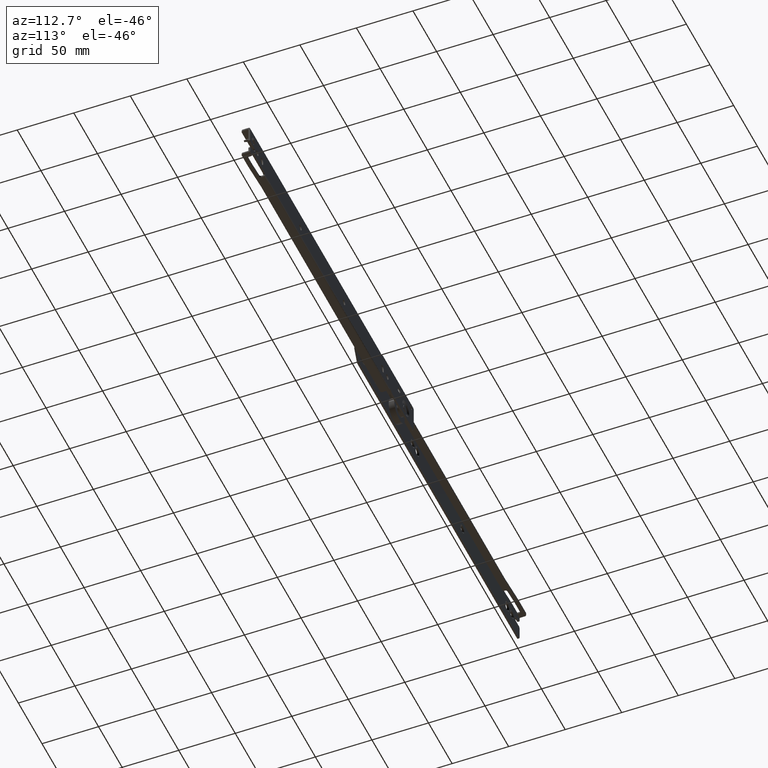
[diagram: clean part render]
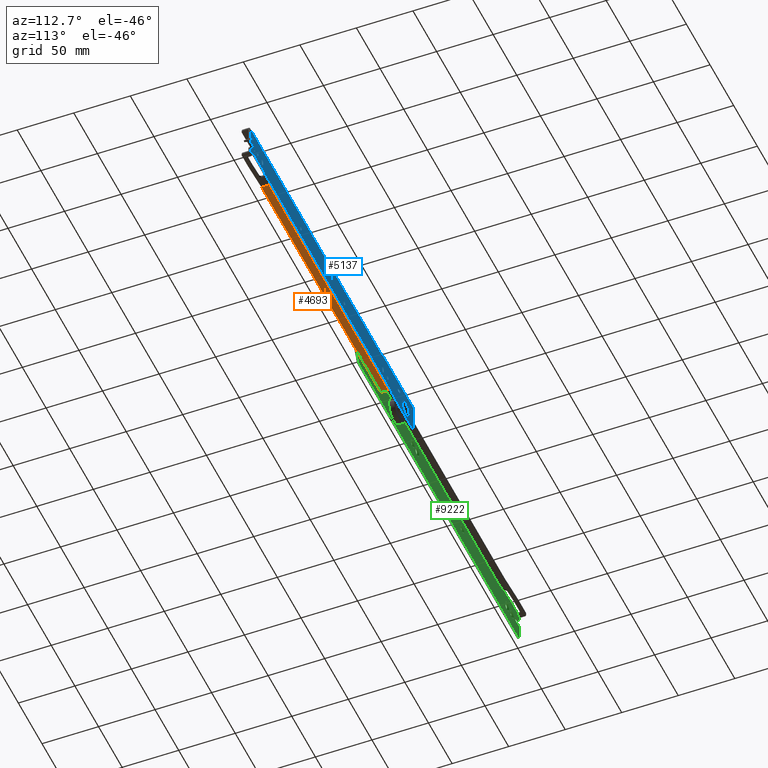
[diagram: same view with three faces highlighted in distinct colors, each labeled with its STEP entity id]
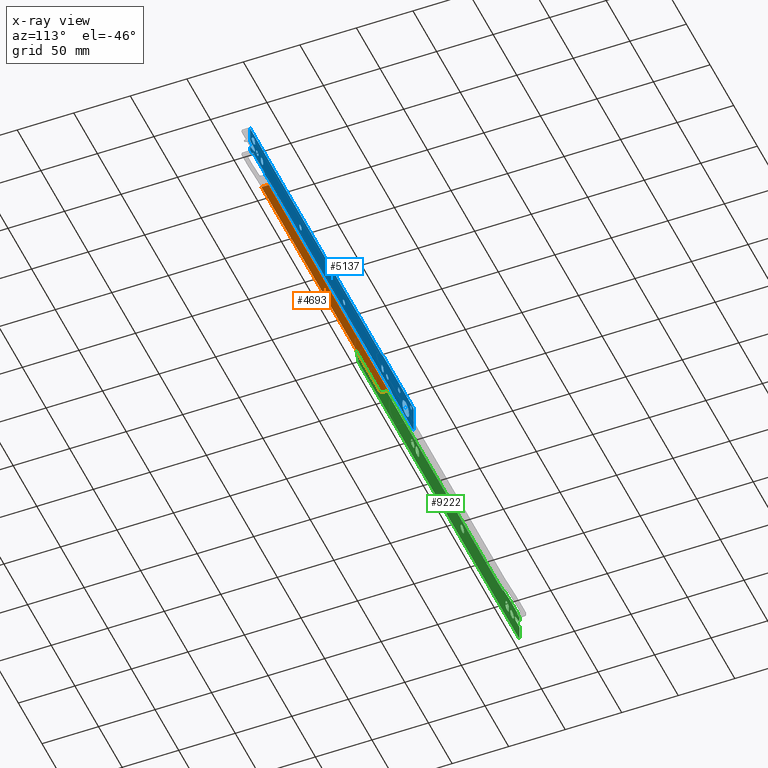
[diagram: x-ray of the same camera — body ghosted, the three highlighted faces saturated]
A machine part, auxiliary view with three faces highlighted in distinct colors.
The next image is the same camera in x-ray (body ghosted, the three faces saturated) — at least one of them is partly hidden behind the body in this view.
Their STEP definitions:

[orange] entity #4693 — the highlighted face is a freeform B-spline surface patch.
#2593=CARTESIAN_POINT('',(207.0,4.499999999999775,1.500000000000000));
#2594=VERTEX_POINT('',#2593);
#2595=CARTESIAN_POINT('',(205.500000000000000,5.999999999999780,1.500000000000000));
#2596=VERTEX_POINT('',#2595);
#2597=CARTESIAN_POINT('',(207.0,4.499999999999781,1.500000000000000));
#2598=CARTESIAN_POINT('',(205.499999999999970,4.499999999999781,1.500000000000000));
#2599=CARTESIAN_POINT('',(205.500000000000000,5.999999999999780,1.500000000000000));
#2607=(BOUNDED_CURVE()B_SPLINE_CURVE(2,(#2597,#2598,#2599),.UNSPECIFIED.,.F.,.U.)CURVE()GEOMETRIC_REPRESENTATION_ITEM()QUASI_UNIFORM_CURVE()RATIONAL_B_SPLINE_CURVE((1.0,0.707106781186548,1.0))REPRESENTATION_ITEM(''));
#2608=EDGE_CURVE('',#2594,#2596,#2607,.T.);
#2956=CARTESIAN_POINT('',(205.500000000000000,11.0,1.500000000000000));
#2957=VERTEX_POINT('',#2956);
#2958=CARTESIAN_POINT('',(205.500000000000000,11.0,1.500000000000000));
#2959=CARTESIAN_POINT('',(205.500000000000000,5.999999999999780,1.500000000000000));
#2960=QUASI_UNIFORM_CURVE('',1,(#2958,#2959),.UNSPECIFIED.,.F.,.U.);
#2961=EDGE_CURVE('',#2957,#2596,#2960,.T.);
#3548=CARTESIAN_POINT('',(458.0,10.999999999999680,1.500000000000000));
#3549=VERTEX_POINT('',#3548);
#3563=CARTESIAN_POINT('',(205.500000000000000,11.0,1.500000000000000));
#3564=CARTESIAN_POINT('',(458.0,10.999999999999680,1.500000000000000));
#3565=QUASI_UNIFORM_CURVE('',1,(#3563,#3564),.UNSPECIFIED.,.F.,.U.);
#3566=EDGE_CURVE('',#2957,#3549,#3565,.T.);
#4570=CARTESIAN_POINT('',(458.0,4.499999999999725,1.500000000000000));
#4571=VERTEX_POINT('',#4570);
#4572=CARTESIAN_POINT('',(458.0,4.499999999999725,1.500000000000000));
#4573=CARTESIAN_POINT('',(207.0,4.499999999999775,1.500000000000000));
#4574=QUASI_UNIFORM_CURVE('',1,(#4572,#4573),.UNSPECIFIED.,.F.,.U.);
#4575=EDGE_CURVE('',#4571,#2594,#4574,.T.);
#4677=CARTESIAN_POINT('',(470.612374510606120,4.175325012597972,1.500000000000000));
#4678=CARTESIAN_POINT('',(192.887618716816210,4.175325012597972,1.500000000000000));
#4679=CARTESIAN_POINT('',(470.612374510606120,11.324675161745340,1.500000000000000));
#4680=CARTESIAN_POINT('',(192.887618716816210,11.324675161745340,1.500000000000000));
#4681=B_SPLINE_SURFACE_WITH_KNOTS('',1,1,((#4677,#4679),(#4678,#4680)),.UNSPECIFIED.,.F.,.F.,.U.,(2,2),(2,2),(0.0,277.724755793789830),(0.0,7.149350149147366),.UNSPECIFIED.);
#4682=ORIENTED_EDGE('',*,*,#4575,.T.);
#4683=ORIENTED_EDGE('',*,*,#2608,.T.);
#4684=ORIENTED_EDGE('',*,*,#2961,.F.);
#4685=ORIENTED_EDGE('',*,*,#3566,.T.);
#4686=CARTESIAN_POINT('',(458.0,4.499999999999725,1.500000000000000));
#4687=CARTESIAN_POINT('',(458.0,10.999999999999680,1.500000000000000));
#4688=QUASI_UNIFORM_CURVE('',1,(#4686,#4687),.UNSPECIFIED.,.F.,.U.);
#4689=EDGE_CURVE('',#4571,#3549,#4688,.T.);
#4690=ORIENTED_EDGE('',*,*,#4689,.F.);
#4691=EDGE_LOOP('',(#4682,#4683,#4684,#4685,#4690));
#4692=FACE_OUTER_BOUND('',#4691,.T.);
#4693=ADVANCED_FACE('',(#4692),#4681,.T.);

[blue] entity #5137 — the highlighted face is a freeform B-spline surface patch.
#721=CARTESIAN_POINT('',(392.118561086909210,12.499999997148841,11.202092773617579));
#722=VERTEX_POINT('',#721);
#723=CARTESIAN_POINT('',(394.500000000000000,12.499999999999300,9.100000000000000));
#724=VERTEX_POINT('',#723);
#725=CARTESIAN_POINT('',(392.118561086909150,12.499999997148839,11.202092773617577));
#726=CARTESIAN_POINT('',(392.381523397422650,12.499999999999302,9.100000000000000));
#727=CARTESIAN_POINT('',(394.500000000000000,12.499999999999300,9.100000000000000));
#735=(BOUNDED_CURVE()B_SPLINE_CURVE(2,(#725,#726,#727),.UNSPECIFIED.,.F.,.U.)B_SPLINE_CURVE_WITH_KNOTS((3,3),(0.271473931955261,0.500000000000000),.UNSPECIFIED.)CURVE()GEOMETRIC_REPRESENTATION_ITEM()RATIONAL_B_SPLINE_CURVE((0.954005424482843,0.732265057390377,1.0))REPRESENTATION_ITEM(''));
#736=EDGE_CURVE('',#722,#724,#735,.T.);
#777=CARTESIAN_POINT('',(396.899908616968390,12.499999998075010,11.520943698667260));
#778=VERTEX_POINT('',#777);
#784=CARTESIAN_POINT('',(394.500000000000000,12.499999999999300,9.100000000000000));
#785=CARTESIAN_POINT('',(396.900000000000030,12.499999999999300,9.100000000000000));
#786=CARTESIAN_POINT('',(396.899999999999980,12.499999999999300,11.500000000000000));
#787=CARTESIAN_POINT('',(396.900000000000030,12.499999999999302,11.510472055426504));
#788=CARTESIAN_POINT('',(396.899908616968390,12.499999998075008,11.520943698667255));
#796=(BOUNDED_CURVE()B_SPLINE_CURVE(2,(#784,#785,#786,#787,#788),.UNSPECIFIED.,.F.,.U.)B_SPLINE_CURVE_WITH_KNOTS((3,2,3),(0.500000000000000,0.750000000000000,0.751539896310218),.UNSPECIFIED.)CURVE()GEOMETRIC_REPRESENTATION_ITEM()RATIONAL_B_SPLINE_CURVE((1.0,0.707106781186547,1.0,0.998195899252245,0.996414023529169))REPRESENTATION_ITEM(''));
#797=EDGE_CURVE('',#724,#778,#796,.T.);
#824=CARTESIAN_POINT('',(394.500000000000000,12.499999999999300,13.900000000000000));
#825=VERTEX_POINT('',#824);
#826=CARTESIAN_POINT('',(394.500000000000000,12.499999999999300,13.900000000000000));
#827=CARTESIAN_POINT('',(392.099999999999910,12.499999999999300,13.899999999999997));
#828=CARTESIAN_POINT('',(392.100000000000020,12.499999999999300,11.500000000000000));
#829=CARTESIAN_POINT('',(392.100000000000020,12.499999999999300,11.350468152600543));
#830=CARTESIAN_POINT('',(392.118561086909150,12.499999997148839,11.202092773617577));
#838=(BOUNDED_CURVE()B_SPLINE_CURVE(2,(#826,#827,#828,#829,#830),.UNSPECIFIED.,.F.,.U.)B_SPLINE_CURVE_WITH_KNOTS((3,2,3),(0.0,0.250000000000000,0.271473931955261),.UNSPECIFIED.)CURVE()GEOMETRIC_REPRESENTATION_ITEM()RATIONAL_B_SPLINE_CURVE((1.0,0.707106781186547,1.0,0.974841723796171,0.954005424482843))REPRESENTATION_ITEM(''));
#839=EDGE_CURVE('',#825,#722,#838,.T.);
#841=CARTESIAN_POINT('',(396.899908616968330,12.499999998075010,11.520943698667256));
#842=CARTESIAN_POINT('',(396.879146878747690,12.499999999999300,13.899999999999997));
#843=CARTESIAN_POINT('',(394.500000000000000,12.499999999999300,13.900000000000000));
#851=(BOUNDED_CURVE()B_SPLINE_CURVE(2,(#841,#842,#843),.UNSPECIFIED.,.F.,.U.)B_SPLINE_CURVE_WITH_KNOTS((3,3),(0.751539896310217,1.0),.UNSPECIFIED.)CURVE()GEOMETRIC_REPRESENTATION_ITEM()RATIONAL_B_SPLINE_CURVE((0.996414023529170,0.708910881934301,1.0))REPRESENTATION_ITEM(''));
#852=EDGE_CURVE('',#778,#825,#851,.T.);
#907=CARTESIAN_POINT('',(300.118561086909210,12.499999997148800,11.202092773617560));
#908=VERTEX_POINT('',#907);
#909=CARTESIAN_POINT('',(302.500000000000000,12.499999999999300,9.100000000000000));
#910=VERTEX_POINT('',#909);
#911=CARTESIAN_POINT('',(300.118561086909100,12.499999997148793,11.202092773617569));
#912=CARTESIAN_POINT('',(300.381523397422880,12.499999999999302,9.100000000000000));
#913=CARTESIAN_POINT('',(302.500000000000000,12.499999999999300,9.100000000000000));
#921=(BOUNDED_CURVE()B_SPLINE_CURVE(2,(#911,#912,#913),.UNSPECIFIED.,.F.,.U.)B_SPLINE_CURVE_WITH_KNOTS((3,3),(0.271473931955262,0.500000000000000),.UNSPECIFIED.)CURVE()GEOMETRIC_REPRESENTATION_ITEM()RATIONAL_B_SPLINE_CURVE((0.954005424482840,0.732265057390379,1.0))REPRESENTATION_ITEM(''));
#922=EDGE_CURVE('',#908,#910,#921,.T.);
#963=CARTESIAN_POINT('',(304.899908616968280,12.499999998075040,11.520943698667260));
#964=VERTEX_POINT('',#963);
#970=CARTESIAN_POINT('',(302.500000000000000,12.499999999999300,9.100000000000000));
#971=CARTESIAN_POINT('',(304.899999999999980,12.499999999999300,9.100000000000000));
#972=CARTESIAN_POINT('',(304.899999999999980,12.499999999999300,11.500000000000000));
#973=CARTESIAN_POINT('',(304.899999999999980,12.499999999999302,11.510472055426504));
#974=CARTESIAN_POINT('',(304.899908616968280,12.499999998075040,11.520943698667264));
#982=(BOUNDED_CURVE()B_SPLINE_CURVE(2,(#970,#971,#972,#973,#974),.UNSPECIFIED.,.F.,.U.)B_SPLINE_CURVE_WITH_KNOTS((3,2,3),(0.500000000000000,0.750000000000000,0.751539896310218),.UNSPECIFIED.)CURVE()GEOMETRIC_REPRESENTATION_ITEM()RATIONAL_B_SPLINE_CURVE((1.0,0.707106781186547,1.0,0.998195899252245,0.996414023529169))REPRESENTATION_ITEM(''));
#983=EDGE_CURVE('',#910,#964,#982,.T.);
#1010=CARTESIAN_POINT('',(302.500000000000000,12.499999999999300,13.900000000000000));
#1011=VERTEX_POINT('',#1010);
#1012=CARTESIAN_POINT('',(302.500000000000000,12.499999999999300,13.900000000000000));
#1013=CARTESIAN_POINT('',(300.100000000000020,12.499999999999300,13.899999999999997));
#1014=CARTESIAN_POINT('',(300.100000000000020,12.499999999999300,11.500000000000000));
#1015=CARTESIAN_POINT('',(300.099999999999910,12.499999999999304,11.350468152600534));
#1016=CARTESIAN_POINT('',(300.118561086909100,12.499999997148795,11.202092773617560));
#1024=(BOUNDED_CURVE()B_SPLINE_CURVE(2,(#1012,#1013,#1014,#1015,#1016),.UNSPECIFIED.,.F.,.U.)B_SPLINE_CURVE_WITH_KNOTS((3,2,3),(0.0,0.250000000000000,0.271473931955262),.UNSPECIFIED.)CURVE()GEOMETRIC_REPRESENTATION_ITEM()RATIONAL_B_SPLINE_CURVE((1.0,0.707106781186547,1.0,0.974841723796169,0.954005424482840))REPRESENTATION_ITEM(''));
#1025=EDGE_CURVE('',#1011,#908,#1024,.T.);
#1027=CARTESIAN_POINT('',(304.899908616968280,12.499999998075044,11.520943698667260));
#1028=CARTESIAN_POINT('',(304.879146878747630,12.499999999999300,13.899999999999995));
#1029=CARTESIAN_POINT('',(302.500000000000000,12.499999999999300,13.900000000000000));
#1037=(BOUNDED_CURVE()B_SPLINE_CURVE(2,(#1027,#1028,#1029),.UNSPECIFIED.,.F.,.U.)B_SPLINE_CURVE_WITH_KNOTS((3,3),(0.751539896310217,1.0),.UNSPECIFIED.)CURVE()GEOMETRIC_REPRESENTATION_ITEM()RATIONAL_B_SPLINE_CURVE((0.996414023529170,0.708910881934301,1.0))REPRESENTATION_ITEM(''));
#1038=EDGE_CURVE('',#964,#1011,#1037,.T.);
#1495=CARTESIAN_POINT('',(208.618561086909210,12.499999997149301,11.202092773617570));
#1496=VERTEX_POINT('',#1495);
#1497=CARTESIAN_POINT('',(211.0,12.499999999999719,9.100000000000025));
#1498=VERTEX_POINT('',#1497);
#1499=CARTESIAN_POINT('',(208.618561086909180,12.499999997149299,11.202092773617563));
#1500=CARTESIAN_POINT('',(208.881523397422820,12.499999999999721,9.100000000000025));
#1501=CARTESIAN_POINT('',(211.0,12.499999999999719,9.100000000000025));
#1509=(BOUNDED_CURVE()B_SPLINE_CURVE(2,(#1499,#1500,#1501),.UNSPECIFIED.,.F.,.U.)B_SPLINE_CURVE_WITH_KNOTS((3,3),(0.271473931955261,0.500000000000000),.UNSPECIFIED.)CURVE()GEOMETRIC_REPRESENTATION_ITEM()RATIONAL_B_SPLINE_CURVE((0.954005424482841,0.732265057390378,1.0))REPRESENTATION_ITEM(''));
#1510=EDGE_CURVE('',#1496,#1498,#1509,.T.);
#1551=CARTESIAN_POINT('',(213.399908616968390,12.499999998075500,11.520943698667260));
#1552=VERTEX_POINT('',#1551);
#1558=CARTESIAN_POINT('',(211.0,12.499999999999719,9.100000000000025));
#1559=CARTESIAN_POINT('',(213.400000000000090,12.499999999999718,9.100000000000025));
#1560=CARTESIAN_POINT('',(213.400000000000010,12.499999999999719,11.500000000000000));
#1561=CARTESIAN_POINT('',(213.400000000000030,12.499999999999721,11.510472055426504));
#1562=CARTESIAN_POINT('',(213.399908616968420,12.499999998075500,11.520943698667264));
#1570=(BOUNDED_CURVE()B_SPLINE_CURVE(2,(#1558,#1559,#1560,#1561,#1562),.UNSPECIFIED.,.F.,.U.)B_SPLINE_CURVE_WITH_KNOTS((3,2,3),(0.500000000000000,0.750000000000000,0.751539896310218),.UNSPECIFIED.)CURVE()GEOMETRIC_REPRESENTATION_ITEM()RATIONAL_B_SPLINE_CURVE((1.0,0.707106781186548,1.0,0.998195899252245,0.996414023529169))REPRESENTATION_ITEM(''));
#1571=EDGE_CURVE('',#1498,#1552,#1570,.T.);
#1598=CARTESIAN_POINT('',(211.0,12.499999999999719,13.899999999999981));
#1599=VERTEX_POINT('',#1598);
#1600=CARTESIAN_POINT('',(211.0,12.499999999999719,13.899999999999981));
#1601=CARTESIAN_POINT('',(208.599999999999970,12.499999999999718,13.899999999999974));
#1602=CARTESIAN_POINT('',(208.599999999999990,12.499999999999719,11.500000000000000));
#1603=CARTESIAN_POINT('',(208.600000000000050,12.499999999999725,11.350468152600536));
#1604=CARTESIAN_POINT('',(208.618561086909120,12.499999997149303,11.202092773617567));
#1612=(BOUNDED_CURVE()B_SPLINE_CURVE(2,(#1600,#1601,#1602,#1603,#1604),.UNSPECIFIED.,.F.,.U.)B_SPLINE_CURVE_WITH_KNOTS((3,2,3),(0.0,0.250000000000000,0.271473931955262),.UNSPECIFIED.)CURVE()GEOMETRIC_REPRESENTATION_ITEM()RATIONAL_B_SPLINE_CURVE((1.0,0.707106781186548,1.0,0.974841723796170,0.954005424482841))REPRESENTATION_ITEM(''));
#1613=EDGE_CURVE('',#1599,#1496,#1612,.T.);
#1615=CARTESIAN_POINT('',(213.399908616968450,12.499999998075506,11.520943698667260));
#1616=CARTESIAN_POINT('',(213.379146878747690,12.499999999999719,13.899999999999972));
#1617=CARTESIAN_POINT('',(211.0,12.499999999999719,13.899999999999981));
#1625=(BOUNDED_CURVE()B_SPLINE_CURVE(2,(#1615,#1616,#1617),.UNSPECIFIED.,.F.,.U.)B_SPLINE_CURVE_WITH_KNOTS((3,3),(0.751539896310217,1.0),.UNSPECIFIED.)CURVE()GEOMETRIC_REPRESENTATION_ITEM()RATIONAL_B_SPLINE_CURVE((0.996414023529170,0.708910881934302,1.0))REPRESENTATION_ITEM(''));
#1626=EDGE_CURVE('',#1552,#1599,#1625,.T.);
#1681=CARTESIAN_POINT('',(183.618561086909100,12.499999997149290,19.202092773617562));
#1682=VERTEX_POINT('',#1681);
#1683=CARTESIAN_POINT('',(186.0,12.499999999999719,17.100000000000001));
#1684=VERTEX_POINT('',#1683);
#1685=CARTESIAN_POINT('',(183.618561086909100,12.499999997149295,19.202092773617562));
#1686=CARTESIAN_POINT('',(183.881523397422740,12.499999999999718,17.100000000000005));
#1687=CARTESIAN_POINT('',(186.0,12.499999999999719,17.100000000000001));
#1695=(BOUNDED_CURVE()B_SPLINE_CURVE(2,(#1685,#1686,#1687),.UNSPECIFIED.,.F.,.U.)B_SPLINE_CURVE_WITH_KNOTS((3,3),(0.271473931955262,0.500000000000000),.UNSPECIFIED.)CURVE()GEOMETRIC_REPRESENTATION_ITEM()RATIONAL_B_SPLINE_CURVE((0.954005424482841,0.732265057390378,1.0))REPRESENTATION_ITEM(''));
#1696=EDGE_CURVE('',#1682,#1684,#1695,.T.);
#1737=CARTESIAN_POINT('',(188.399908616968500,12.499999998075500,19.520943698667260));
#1738=VERTEX_POINT('',#1737);
#1744=CARTESIAN_POINT('',(186.0,12.499999999999719,17.100000000000001));
#1745=CARTESIAN_POINT('',(188.399999999999950,12.499999999999719,17.099999999999998));
#1746=CARTESIAN_POINT('',(188.400000000000010,12.499999999999719,19.500000000000000));
#1747=CARTESIAN_POINT('',(188.400000000000090,12.499999999999721,19.510472055426511));
#1748=CARTESIAN_POINT('',(188.399908616968420,12.499999998075500,19.520943698667264));
#1756=(BOUNDED_CURVE()B_SPLINE_CURVE(2,(#1744,#1745,#1746,#1747,#1748),.UNSPECIFIED.,.F.,.U.)B_SPLINE_CURVE_WITH_KNOTS((3,2,3),(0.500000000000000,0.750000000000000,0.751539896310218),.UNSPECIFIED.)CURVE()GEOMETRIC_REPRESENTATION_ITEM()RATIONAL_B_SPLINE_CURVE((1.0,0.707106781186547,1.0,0.998195899252245,0.996414023529169))REPRESENTATION_ITEM(''));
#1757=EDGE_CURVE('',#1684,#1738,#1756,.T.);
#1784=CARTESIAN_POINT('',(186.0,12.499999999999719,21.899999999999999));
#1785=VERTEX_POINT('',#1784);
#1786=CARTESIAN_POINT('',(186.0,12.499999999999719,21.899999999999999));
#1787=CARTESIAN_POINT('',(183.599999999999990,12.499999999999719,21.900000000000002));
#1788=CARTESIAN_POINT('',(183.599999999999990,12.499999999999719,19.500000000000000));
#1789=CARTESIAN_POINT('',(183.599999999999990,12.499999999999726,19.350468152600531));
#1790=CARTESIAN_POINT('',(183.618561086909100,12.499999997149295,19.202092773617562));
#1798=(BOUNDED_CURVE()B_SPLINE_CURVE(2,(#1786,#1787,#1788,#1789,#1790),.UNSPECIFIED.,.F.,.U.)B_SPLINE_CURVE_WITH_KNOTS((3,2,3),(0.0,0.250000000000000,0.271473931955262),.UNSPECIFIED.)CURVE()GEOMETRIC_REPRESENTATION_ITEM()RATIONAL_B_SPLINE_CURVE((1.0,0.707106781186547,1.0,0.974841723796169,0.954005424482841))REPRESENTATION_ITEM(''));
#1799=EDGE_CURVE('',#1785,#1682,#1798,.T.);
#1801=CARTESIAN_POINT('',(188.399908616968470,12.499999998075499,19.520943698667260));
#1802=CARTESIAN_POINT('',(188.379146878747660,12.499999999999719,21.899999999999995));
#1803=CARTESIAN_POINT('',(186.0,12.499999999999719,21.899999999999999));
#1811=(BOUNDED_CURVE()B_SPLINE_CURVE(2,(#1801,#1802,#1803),.UNSPECIFIED.,.F.,.U.)B_SPLINE_CURVE_WITH_KNOTS((3,3),(0.751539896310218,1.0),.UNSPECIFIED.)CURVE()GEOMETRIC_REPRESENTATION_ITEM()RATIONAL_B_SPLINE_CURVE((0.996414023529169,0.708910881934302,1.0))REPRESENTATION_ITEM(''));
#1812=EDGE_CURVE('',#1738,#1785,#1811,.T.);
#1871=CARTESIAN_POINT('',(158.812233328866110,12.499999999999719,23.656559910670381));
#1872=VERTEX_POINT('',#1871);
#1873=CARTESIAN_POINT('',(160.550000000000010,12.499999999999719,21.699999999999999));
#1874=VERTEX_POINT('',#1873);
#1875=CARTESIAN_POINT('',(158.812233328866090,12.499999999999719,23.656559910670381));
#1876=CARTESIAN_POINT('',(158.800000000000010,12.499999999999718,23.553642209412121));
#1877=CARTESIAN_POINT('',(158.800000000000010,12.499999999999719,23.449999999999999));
#1878=CARTESIAN_POINT('',(158.799999999999950,12.499999999999719,21.699999999999999));
#1879=CARTESIAN_POINT('',(160.550000000000010,12.499999999999719,21.699999999999999));
#1887=(BOUNDED_CURVE()B_SPLINE_CURVE(2,(#1875,#1876,#1877,#1878,#1879),.UNSPECIFIED.,.F.,.U.)B_SPLINE_CURVE_WITH_KNOTS((3,2,3),(0.229562473511549,0.250000000000000,0.500000000000000),.UNSPECIFIED.)CURVE()GEOMETRIC_REPRESENTATION_ITEM()RATIONAL_B_SPLINE_CURVE((0.956026754179860,0.976055948328850,1.0,0.707106781186547,1.0))REPRESENTATION_ITEM(''));
#1888=EDGE_CURVE('',#1872,#1874,#1887,.T.);
#1929=CARTESIAN_POINT('',(162.296735897235610,12.499999999999719,23.343165055771081));
#1930=VERTEX_POINT('',#1929);
#1936=CARTESIAN_POINT('',(160.550000000000010,12.499999999999719,21.699999999999999));
#1937=CARTESIAN_POINT('',(162.196235617003880,12.499999999999719,21.699999999999996));
#1938=CARTESIAN_POINT('',(162.296735897235660,12.499999999999719,23.343165055771081));
#1946=(BOUNDED_CURVE()B_SPLINE_CURVE(2,(#1936,#1937,#1938),.UNSPECIFIED.,.F.,.U.)B_SPLINE_CURVE_WITH_KNOTS((3,3),(0.500000000000000,0.739332962233489),.UNSPECIFIED.)CURVE()GEOMETRIC_REPRESENTATION_ITEM()RATIONAL_B_SPLINE_CURVE((1.0,0.719603993293099,0.976072041655030))REPRESENTATION_ITEM(''));
#1947=EDGE_CURVE('',#1874,#1930,#1946,.T.);
#1970=CARTESIAN_POINT('',(160.550000000000010,12.499999999999719,25.199999999999999));
#1971=VERTEX_POINT('',#1970);
#1972=CARTESIAN_POINT('',(160.550000000000010,12.499999999999719,25.199999999999999));
#1973=CARTESIAN_POINT('',(158.995694579622950,12.499999999999719,25.200000000000003));
#1974=CARTESIAN_POINT('',(158.812233328866060,12.499999999999718,23.656559910670389));
#1982=(BOUNDED_CURVE()B_SPLINE_CURVE(2,(#1972,#1973,#1974),.UNSPECIFIED.,.F.,.U.)B_SPLINE_CURVE_WITH_KNOTS((3,3),(0.0,0.229562473511550),.UNSPECIFIED.)CURVE()GEOMETRIC_REPRESENTATION_ITEM()RATIONAL_B_SPLINE_CURVE((1.0,0.731050832857697,0.956026754179860))REPRESENTATION_ITEM(''));
#1983=EDGE_CURVE('',#1971,#1872,#1982,.T.);
#1985=CARTESIAN_POINT('',(162.296735897235580,12.499999999999716,23.343165055771081));
#1986=CARTESIAN_POINT('',(162.299999999999980,12.499999999999723,23.396532664184427));
#1987=CARTESIAN_POINT('',(162.300000000000010,12.499999999999719,23.449999999999999));
#1988=CARTESIAN_POINT('',(162.300000000000070,12.499999999999719,25.200000000000006));
#1989=CARTESIAN_POINT('',(160.550000000000010,12.499999999999719,25.199999999999999));
#1997=(BOUNDED_CURVE()B_SPLINE_CURVE(2,(#1985,#1986,#1987,#1988,#1989),.UNSPECIFIED.,.F.,.U.)B_SPLINE_CURVE_WITH_KNOTS((3,2,3),(0.739332962233489,0.750000000000000,1.0),.UNSPECIFIED.)CURVE()GEOMETRIC_REPRESENTATION_ITEM()RATIONAL_B_SPLINE_CURVE((0.976072041655029,0.987502787893447,1.0,0.707106781186547,1.0))REPRESENTATION_ITEM(''));
#1998=EDGE_CURVE('',#1930,#1971,#1997,.T.);
#2053=CARTESIAN_POINT('',(483.618561086909210,12.499999997149310,11.202092773617570));
#2054=VERTEX_POINT('',#2053);
#2055=CARTESIAN_POINT('',(486.0,12.499999999999719,9.100000000000025));
#2056=VERTEX_POINT('',#2055);
#2057=CARTESIAN_POINT('',(483.618561086909100,12.499999997149310,11.202092773617577));
#2058=CARTESIAN_POINT('',(483.881523397422650,12.499999999999716,9.100000000000023));
#2059=CARTESIAN_POINT('',(486.0,12.499999999999719,9.100000000000025));
#2067=(BOUNDED_CURVE()B_SPLINE_CURVE(2,(#2057,#2058,#2059),.UNSPECIFIED.,.F.,.U.)B_SPLINE_CURVE_WITH_KNOTS((3,3),(0.271473931955261,0.500000000000000),.UNSPECIFIED.)CURVE()GEOMETRIC_REPRESENTATION_ITEM()RATIONAL_B_SPLINE_CURVE((0.954005424482843,0.732265057390377,1.0))REPRESENTATION_ITEM(''));
#2068=EDGE_CURVE('',#2054,#2056,#2067,.T.);
#2109=CARTESIAN_POINT('',(488.399908616968280,12.499999998075500,11.520943698667260));
#2110=VERTEX_POINT('',#2109);
#2116=CARTESIAN_POINT('',(486.0,12.499999999999719,9.100000000000025));
#2117=CARTESIAN_POINT('',(488.399999999999810,12.499999999999718,9.100000000000025));
#2118=CARTESIAN_POINT('',(488.399999999999920,12.499999999999719,11.500000000000000));
#2119=CARTESIAN_POINT('',(488.399999999999920,12.499999999999721,11.510472055426504));
#2120=CARTESIAN_POINT('',(488.399908616968330,12.499999998075500,11.520943698667264));
#2128=(BOUNDED_CURVE()B_SPLINE_CURVE(2,(#2116,#2117,#2118,#2119,#2120),.UNSPECIFIED.,.F.,.U.)B_SPLINE_CURVE_WITH_KNOTS((3,2,3),(0.500000000000000,0.750000000000000,0.751539896310218),.UNSPECIFIED.)CURVE()GEOMETRIC_REPRESENTATION_ITEM()RATIONAL_B_SPLINE_CURVE((1.0,0.707106781186548,1.0,0.998195899252245,0.996414023529169))REPRESENTATION_ITEM(''));
#2129=EDGE_CURVE('',#2056,#2110,#2128,.T.);
#2156=CARTESIAN_POINT('',(486.0,12.499999999999719,13.899999999999981));
#2157=VERTEX_POINT('',#2156);
#2158=CARTESIAN_POINT('',(486.0,12.499999999999719,13.899999999999981));
#2159=CARTESIAN_POINT('',(483.600000000000020,12.499999999999718,13.899999999999974));
#2160=CARTESIAN_POINT('',(483.600000000000020,12.499999999999719,11.500000000000000));
#2161=CARTESIAN_POINT('',(483.600000000000080,12.499999999999719,11.350468152600543));
#2162=CARTESIAN_POINT('',(483.618561086909100,12.499999997149310,11.202092773617577));
#2170=(BOUNDED_CURVE()B_SPLINE_CURVE(2,(#2158,#2159,#2160,#2161,#2162),.UNSPECIFIED.,.F.,.U.)B_SPLINE_CURVE_WITH_KNOTS((3,2,3),(0.0,0.250000000000000,0.271473931955261),.UNSPECIFIED.)CURVE()GEOMETRIC_REPRESENTATION_ITEM()RATIONAL_B_SPLINE_CURVE((1.0,0.707106781186548,1.0,0.974841723796171,0.954005424482843))REPRESENTATION_ITEM(''));
#2171=EDGE_CURVE('',#2157,#2054,#2170,.T.);
#2173=CARTESIAN_POINT('',(488.399908616968390,12.499999998075497,11.520943698667262));
#2174=CARTESIAN_POINT('',(488.379146878747460,12.499999999999718,13.899999999999975));
#2175=CARTESIAN_POINT('',(486.0,12.499999999999719,13.899999999999981));
#2183=(BOUNDED_CURVE()B_SPLINE_CURVE(2,(#2173,#2174,#2175),.UNSPECIFIED.,.F.,.U.)B_SPLINE_CURVE_WITH_KNOTS((3,3),(0.751539896310217,1.0),.UNSPECIFIED.)CURVE()GEOMETRIC_REPRESENTATION_ITEM()RATIONAL_B_SPLINE_CURVE((0.996414023529170,0.708910881934302,1.0))REPRESENTATION_ITEM(''));
#2184=EDGE_CURVE('',#2110,#2157,#2183,.T.);
#2267=CARTESIAN_POINT('',(176.953429373998200,12.499999999999760,6.225133479462992));
#2268=VERTEX_POINT('',#2267);
#2282=CARTESIAN_POINT('',(172.0,12.499999999999760,4.263932022500369));
#2283=VERTEX_POINT('',#2282);
#2284=CARTESIAN_POINT('',(172.0,12.499999999999760,4.263932022500369));
#2285=CARTESIAN_POINT('',(174.864961987011610,12.499999999999755,4.263932022500369));
#2286=CARTESIAN_POINT('',(176.953429373998180,12.499999999999762,6.225133479462992));
#2294=(BOUNDED_CURVE()B_SPLINE_CURVE(2,(#2284,#2285,#2286),.UNSPECIFIED.,.F.,.U.)B_SPLINE_CURVE_WITH_KNOTS((3,3),(0.500000000000000,0.620259312884512),.UNSPECIFIED.)CURVE()GEOMETRIC_REPRESENTATION_ITEM()RATIONAL_B_SPLINE_CURVE((1.0,0.859107451027845,0.853764031095200))REPRESENTATION_ITEM(''));
#2295=EDGE_CURVE('',#2283,#2268,#2294,.T.);
#2297=CARTESIAN_POINT('',(172.0,12.499999999999760,18.736067977499630));
#2298=VERTEX_POINT('',#2297);
#2299=CARTESIAN_POINT('',(172.0,12.499999999999760,18.736067977499630));
#2300=CARTESIAN_POINT('',(164.763932022500400,12.499999999999758,18.736067977499641));
#2301=CARTESIAN_POINT('',(164.763932022500400,12.499999999999760,11.500000000000000));
#2302=CARTESIAN_POINT('',(164.763932022500400,12.499999999999758,4.263932022500369));
#2303=CARTESIAN_POINT('',(172.0,12.499999999999760,4.263932022500369));
#2311=(BOUNDED_CURVE()B_SPLINE_CURVE(2,(#2299,#2300,#2301,#2302,#2303),.UNSPECIFIED.,.F.,.U.)B_SPLINE_CURVE_WITH_KNOTS((3,2,3),(0.0,0.250000000000000,0.500000000000000),.UNSPECIFIED.)CURVE()GEOMETRIC_REPRESENTATION_ITEM()RATIONAL_B_SPLINE_CURVE((1.0,0.707106781186548,1.0,0.707106781186548,1.0))REPRESENTATION_ITEM(''));
#2312=EDGE_CURVE('',#2298,#2283,#2311,.T.);
#2314=CARTESIAN_POINT('',(177.274866525016390,12.499999999999771,16.453429377267600));
#2315=VERTEX_POINT('',#2314);
#2316=CARTESIAN_POINT('',(177.274866525016420,12.499999999999771,16.453429377267600));
#2317=CARTESIAN_POINT('',(175.131326231418570,12.499999999999760,18.736067977499630));
#2318=CARTESIAN_POINT('',(172.0,12.499999999999760,18.736067977499630));
#2326=(BOUNDED_CURVE()B_SPLINE_CURVE(2,(#2316,#2317,#2318),.UNSPECIFIED.,.F.,.U.)B_SPLINE_CURVE_WITH_KNOTS((3,3),(0.870259312856017,1.0),.UNSPECIFIED.)CURVE()GEOMETRIC_REPRESENTATION_ITEM()RATIONAL_B_SPLINE_CURVE((0.853764031097732,0.847999330125319,1.0))REPRESENTATION_ITEM(''));
#2327=EDGE_CURVE('',#2315,#2298,#2326,.T.);
#2410=CARTESIAN_POINT('',(176.953429373998180,12.499999999999762,6.225133479462992));
#2411=CARTESIAN_POINT('',(179.236067977499630,12.499999999999760,8.368673769392398));
#2412=CARTESIAN_POINT('',(179.236067977499600,12.499999999999760,11.500000000000000));
#2413=CARTESIAN_POINT('',(179.236067977499600,12.499999999999764,14.364961986221390));
#2414=CARTESIAN_POINT('',(177.274866525016390,12.499999999999769,16.453429377267600));
#2422=(BOUNDED_CURVE()B_SPLINE_CURVE(2,(#2410,#2411,#2412,#2413,#2414),.UNSPECIFIED.,.F.,.U.)B_SPLINE_CURVE_WITH_KNOTS((3,2,3),(0.620259312884512,0.750000000000000,0.870259312856016),.UNSPECIFIED.)CURVE()GEOMETRIC_REPRESENTATION_ITEM()RATIONAL_B_SPLINE_CURVE((0.853764031095200,0.847999330158703,1.0,0.859107451061230,0.853764031097733))REPRESENTATION_ITEM(''));
#2423=EDGE_CURVE('',#2268,#2315,#2422,.T.);
#2744=CARTESIAN_POINT('',(218.599999999999990,12.499999999999719,10.500000000000000));
#2745=VERTEX_POINT('',#2744);
#2751=CARTESIAN_POINT('',(218.599999999999990,12.499999999999719,12.500000000000000));
#2752=VERTEX_POINT('',#2751);
#2753=CARTESIAN_POINT('',(218.599999999999990,12.499999999999719,10.500000000000000));
#2754=CARTESIAN_POINT('',(218.599999999999990,12.499999999999719,12.500000000000000));
#2755=QUASI_UNIFORM_CURVE('',1,(#2753,#2754),.UNSPECIFIED.,.F.,.U.);
#2756=EDGE_CURVE('',#2745,#2752,#2755,.T.);
#2791=CARTESIAN_POINT('',(223.400000000000010,12.499999999999719,12.500000000000000));
#2792=VERTEX_POINT('',#2791);
#2816=CARTESIAN_POINT('',(223.400000000000010,12.499999999999719,12.500000000000000));
#2817=CARTESIAN_POINT('',(223.399999999999950,12.499999999999718,14.899999999999975));
#2818=CARTESIAN_POINT('',(221.0,12.499999999999719,14.899999999999981));
#2819=CARTESIAN_POINT('',(218.599999999999990,12.499999999999718,14.899999999999975));
#2820=CARTESIAN_POINT('',(218.599999999999990,12.499999999999719,12.500000000000000));
#2828=(BOUNDED_CURVE()B_SPLINE_CURVE(2,(#2816,#2817,#2818,#2819,#2820),.UNSPECIFIED.,.F.,.U.)B_SPLINE_CURVE_WITH_KNOTS((3,2,3),(0.0,0.500000000000000,1.0),.UNSPECIFIED.)CURVE()GEOMETRIC_REPRESENTATION_ITEM()RATIONAL_B_SPLINE_CURVE((1.0,0.707106781186548,1.0,0.707106781186548,1.0))REPRESENTATION_ITEM(''));
#2829=EDGE_CURVE('',#2792,#2752,#2828,.T.);
#2854=CARTESIAN_POINT('',(223.400000000000010,12.499999999999719,10.500000000000000));
#2855=VERTEX_POINT('',#2854);
#2861=CARTESIAN_POINT('',(218.599999999999990,12.499999999999719,10.500000000000000));
#2862=CARTESIAN_POINT('',(218.599999999999990,12.499999999999718,8.100000000000026));
#2863=CARTESIAN_POINT('',(221.0,12.499999999999719,8.100000000000026));
#2864=CARTESIAN_POINT('',(223.399999999999950,12.499999999999718,8.100000000000026));
#2865=CARTESIAN_POINT('',(223.400000000000010,12.499999999999719,10.500000000000000));
#2873=(BOUNDED_CURVE()B_SPLINE_CURVE(2,(#2861,#2862,#2863,#2864,#2865),.UNSPECIFIED.,.F.,.U.)B_SPLINE_CURVE_WITH_KNOTS((3,2,3),(0.0,0.500000000000000,1.0),.UNSPECIFIED.)CURVE()GEOMETRIC_REPRESENTATION_ITEM()RATIONAL_B_SPLINE_CURVE((1.0,0.707106781186548,1.0,0.707106781186548,1.0))REPRESENTATION_ITEM(''));
#2874=EDGE_CURVE('',#2745,#2855,#2873,.T.);
#2901=CARTESIAN_POINT('',(223.400000000000010,12.499999999999719,12.500000000000000));
#2902=CARTESIAN_POINT('',(223.400000000000010,12.499999999999719,10.500000000000000));
#2903=QUASI_UNIFORM_CURVE('',1,(#2901,#2902),.UNSPECIFIED.,.F.,.U.);
#2904=EDGE_CURVE('',#2792,#2855,#2903,.T.);
#2920=CARTESIAN_POINT('',(225.0,12.499999999999719,26.0));
#2921=VERTEX_POINT('',#2920);
#2922=CARTESIAN_POINT('',(224.0,12.499999999999719,26.0));
#2923=VERTEX_POINT('',#2922);
#2924=CARTESIAN_POINT('',(225.0,12.499999999999719,26.0));
#2925=CARTESIAN_POINT('',(224.0,12.499999999999719,26.0));
#2926=QUASI_UNIFORM_CURVE('',1,(#2924,#2925),.UNSPECIFIED.,.F.,.U.);
#2927=EDGE_CURVE('',#2921,#2923,#2926,.T.);
#2971=CARTESIAN_POINT('',(205.500000000000000,12.499999999999719,3.0));
#2972=VERTEX_POINT('',#2971);
#2999=CARTESIAN_POINT('',(204.500000000000000,12.499999999999719,3.0));
#3000=VERTEX_POINT('',#2999);
#3001=CARTESIAN_POINT('',(204.500000000000000,12.499999999999719,3.0));
#3002=CARTESIAN_POINT('',(205.500000000000000,12.499999999999719,3.0));
#3003=QUASI_UNIFORM_CURVE('',1,(#3001,#3002),.UNSPECIFIED.,.F.,.U.);
#3004=EDGE_CURVE('',#3000,#2972,#3003,.T.);
#3027=CARTESIAN_POINT('',(200.500000000000000,12.499999999999719,1.500000000000000));
#3028=VERTEX_POINT('',#3027);
#3029=CARTESIAN_POINT('',(200.500000000000000,12.499999999999719,1.500000000000000));
#3030=CARTESIAN_POINT('',(204.500000000000000,12.499999999999719,3.0));
#3031=QUASI_UNIFORM_CURVE('',1,(#3029,#3030),.UNSPECIFIED.,.F.,.U.);
#3032=EDGE_CURVE('',#3028,#3000,#3031,.T.);
#3055=CARTESIAN_POINT('',(157.0,12.499999999999719,1.500000000000000));
#3056=VERTEX_POINT('',#3055);
#3057=CARTESIAN_POINT('',(157.0,12.499999999999719,1.500000000000000));
#3058=CARTESIAN_POINT('',(200.500000000000000,12.499999999999719,1.500000000000000));
#3059=QUASI_UNIFORM_CURVE('',1,(#3057,#3058),.UNSPECIFIED.,.F.,.U.);
#3060=EDGE_CURVE('',#3056,#3028,#3059,.T.);
#3092=CARTESIAN_POINT('',(155.0,12.499999999999719,3.500000000000000));
#3093=VERTEX_POINT('',#3092);
#3094=CARTESIAN_POINT('',(155.0,12.499999999999719,3.500000000000000));
#3095=CARTESIAN_POINT('',(155.000000000000030,12.499999999999718,1.500000000000000));
#3096=CARTESIAN_POINT('',(157.0,12.499999999999719,1.500000000000000));
#3104=(BOUNDED_CURVE()B_SPLINE_CURVE(2,(#3094,#3095,#3096),.UNSPECIFIED.,.F.,.U.)CURVE()GEOMETRIC_REPRESENTATION_ITEM()QUASI_UNIFORM_CURVE()RATIONAL_B_SPLINE_CURVE((1.0,0.707106781186548,1.0))REPRESENTATION_ITEM(''));
#3105=EDGE_CURVE('',#3093,#3056,#3104,.T.);
#3136=CARTESIAN_POINT('',(155.0,12.499999999999719,25.500000000000000));
#3137=VERTEX_POINT('',#3136);
#3138=CARTESIAN_POINT('',(155.0,12.499999999999719,25.500000000000000));
#3139=CARTESIAN_POINT('',(155.0,12.499999999999719,3.500000000000000));
#3140=QUASI_UNIFORM_CURVE('',1,(#3138,#3139),.UNSPECIFIED.,.F.,.U.);
#3141=EDGE_CURVE('',#3137,#3093,#3140,.T.);
#3173=CARTESIAN_POINT('',(157.0,12.499999999999719,27.500000000000000));
#3174=VERTEX_POINT('',#3173);
#3175=CARTESIAN_POINT('',(157.0,12.499999999999719,27.500000000000000));
#3176=CARTESIAN_POINT('',(155.000000000000030,12.499999999999718,27.500000000000004));
#3177=CARTESIAN_POINT('',(155.0,12.499999999999719,25.500000000000000));
#3185=(BOUNDED_CURVE()B_SPLINE_CURVE(2,(#3175,#3176,#3177),.UNSPECIFIED.,.F.,.U.)CURVE()GEOMETRIC_REPRESENTATION_ITEM()QUASI_UNIFORM_CURVE()RATIONAL_B_SPLINE_CURVE((1.0,0.707106781186548,1.0))REPRESENTATION_ITEM(''));
#3186=EDGE_CURVE('',#3174,#3137,#3185,.T.);
#3217=CARTESIAN_POINT('',(220.0,12.499999999999719,27.500000000000000));
#3218=VERTEX_POINT('',#3217);
#3219=CARTESIAN_POINT('',(220.0,12.499999999999719,27.500000000000000));
#3220=CARTESIAN_POINT('',(157.0,12.499999999999719,27.500000000000000));
#3221=QUASI_UNIFORM_CURVE('',1,(#3219,#3220),.UNSPECIFIED.,.F.,.U.);
#3222=EDGE_CURVE('',#3218,#3174,#3221,.T.);
#3245=CARTESIAN_POINT('',(224.0,12.499999999999719,26.0));
#3246=CARTESIAN_POINT('',(220.0,12.499999999999719,27.500000000000000));
#3247=QUASI_UNIFORM_CURVE('',1,(#3245,#3246),.UNSPECIFIED.,.F.,.U.);
#3248=EDGE_CURVE('',#2923,#3218,#3247,.T.);
#3279=CARTESIAN_POINT('',(498.202494185347010,12.499999999999719,17.045640091753551));
#3280=VERTEX_POINT('',#3279);
#3309=CARTESIAN_POINT('',(492.545640091754020,12.499999999999760,22.702494185347099));
#3310=VERTEX_POINT('',#3309);
#3326=CARTESIAN_POINT('',(498.202494185347120,12.499999999999760,17.045640091753580));
#3327=CARTESIAN_POINT('',(496.329397377332900,12.499999999999758,20.829397377332583));
#3328=CARTESIAN_POINT('',(492.545640091753910,12.499999999999760,22.702494185346922));
#3336=(BOUNDED_CURVE()B_SPLINE_CURVE(2,(#3326,#3327,#3328),.UNSPECIFIED.,.F.,.U.)CURVE()GEOMETRIC_REPRESENTATION_ITEM()QUASI_UNIFORM_CURVE()RATIONAL_B_SPLINE_CURVE((1.0,0.947417545564864,1.0))REPRESENTATION_ITEM(''));
#3337=EDGE_CURVE('',#3280,#3310,#3336,.T.);
#3546=CARTESIAN_POINT('',(458.066831356245020,12.499999999999760,3.0));
#3547=VERTEX_POINT('',#3546);
#3569=CARTESIAN_POINT('',(458.066831356245020,12.499999999999760,3.0));
#3570=CARTESIAN_POINT('',(205.500000000000000,12.499999999999719,3.0));
#3571=QUASI_UNIFORM_CURVE('',1,(#3569,#3570),.UNSPECIFIED.,.F.,.U.);
#3572=EDGE_CURVE('',#3547,#2972,#3571,.T.);
#3593=CARTESIAN_POINT('',(469.500000000000000,12.499999999999760,1.979181371093275));
#3594=VERTEX_POINT('',#3593);
#3614=CARTESIAN_POINT('',(469.500000000000000,12.499999999999760,1.979181371093275));
#3615=CARTESIAN_POINT('',(458.066831356245020,12.499999999999760,3.0));
#3616=QUASI_UNIFORM_CURVE('',1,(#3614,#3615),.UNSPECIFIED.,.F.,.U.);
#3617=EDGE_CURVE('',#3594,#3547,#3616,.T.);
#3638=CARTESIAN_POINT('',(501.0,12.499999999999719,0.500000000000000));
#3639=VERTEX_POINT('',#3638);
#3660=CARTESIAN_POINT('',(496.0,12.499999999999760,0.500000000000000));
#3661=VERTEX_POINT('',#3660);
#3675=CARTESIAN_POINT('',(501.0,12.499999999999719,0.500000000000000));
#3676=CARTESIAN_POINT('',(496.0,12.499999999999760,0.500000000000000));
#3677=QUASI_UNIFORM_CURVE('',1,(#3675,#3676),.UNSPECIFIED.,.F.,.U.);
#3678=EDGE_CURVE('',#3639,#3661,#3677,.T.);
#3697=CARTESIAN_POINT('',(501.0,12.499999999999719,26.0));
#3698=VERTEX_POINT('',#3697);
#3699=CARTESIAN_POINT('',(225.0,12.499999999999719,26.0));
#3700=CARTESIAN_POINT('',(501.0,12.499999999999719,26.0));
#3701=QUASI_UNIFORM_CURVE('',1,(#3699,#3700),.UNSPECIFIED.,.F.,.U.);
#3702=EDGE_CURVE('',#2921,#3698,#3701,.T.);
#3931=CARTESIAN_POINT('',(494.500000000000000,12.499999999999719,3.500000000000000));
#3932=VERTEX_POINT('',#3931);
#3938=CARTESIAN_POINT('',(496.0,12.499999999999719,2.0));
#3939=VERTEX_POINT('',#3938);
#3940=CARTESIAN_POINT('',(496.0,12.499999999999719,2.0));
#3941=CARTESIAN_POINT('',(496.000000000000060,12.499999999999718,3.499999999999999));
#3942=CARTESIAN_POINT('',(494.500000000000000,12.499999999999719,3.500000000000000));
#3950=(BOUNDED_CURVE()B_SPLINE_CURVE(2,(#3940,#3941,#3942),.UNSPECIFIED.,.F.,.U.)CURVE()GEOMETRIC_REPRESENTATION_ITEM()QUASI_UNIFORM_CURVE()RATIONAL_B_SPLINE_CURVE((1.0,0.707106781186548,1.0))REPRESENTATION_ITEM(''));
#3951=EDGE_CURVE('',#3939,#3932,#3950,.T.);
#3966=CARTESIAN_POINT('',(496.0,12.499999999999760,0.500000000000000));
#3967=CARTESIAN_POINT('',(496.0,12.499999999999719,2.0));
#3968=QUASI_UNIFORM_CURVE('',1,(#3966,#3967),.UNSPECIFIED.,.F.,.U.);
#3969=EDGE_CURVE('',#3661,#3939,#3968,.T.);
#4005=CARTESIAN_POINT('',(469.500000000000000,12.499999999999719,2.0));
#4006=VERTEX_POINT('',#4005);
#4007=CARTESIAN_POINT('',(469.500000000000000,12.499999999999719,2.0));
#4008=CARTESIAN_POINT('',(469.500000000000000,12.499999999999760,1.979181371093275));
#4009=QUASI_UNIFORM_CURVE('',1,(#4007,#4008),.UNSPECIFIED.,.F.,.U.);
#4010=EDGE_CURVE('',#4006,#3594,#4009,.T.);
#4065=CARTESIAN_POINT('',(471.0,12.499999999999719,3.500000000000000));
#4066=VERTEX_POINT('',#4065);
#4067=CARTESIAN_POINT('',(471.0,12.499999999999719,3.500000000000000));
#4068=CARTESIAN_POINT('',(469.500000000000000,12.499999999999718,3.499999999999999));
#4069=CARTESIAN_POINT('',(469.500000000000000,12.499999999999719,2.0));
#4077=(BOUNDED_CURVE()B_SPLINE_CURVE(2,(#4067,#4068,#4069),.UNSPECIFIED.,.F.,.U.)CURVE()GEOMETRIC_REPRESENTATION_ITEM()QUASI_UNIFORM_CURVE()RATIONAL_B_SPLINE_CURVE((1.0,0.707106781186548,1.0))REPRESENTATION_ITEM(''));
#4078=EDGE_CURVE('',#4066,#4006,#4077,.T.);
#4099=CARTESIAN_POINT('',(494.500000000000000,12.499999999999719,3.500000000000000));
#4100=CARTESIAN_POINT('',(471.0,12.499999999999719,3.500000000000000));
#4101=QUASI_UNIFORM_CURVE('',1,(#4099,#4100),.UNSPECIFIED.,.F.,.U.);
#4102=EDGE_CURVE('',#3932,#4066,#4101,.T.);
#4235=CARTESIAN_POINT('',(473.600000000000020,12.499999999999719,12.500000000000000));
#4236=VERTEX_POINT('',#4235);
#4251=CARTESIAN_POINT('',(473.600000000000020,12.499999999999719,10.500000000000000));
#4252=VERTEX_POINT('',#4251);
#4258=CARTESIAN_POINT('',(473.600000000000020,12.499999999999719,10.500000000000000));
#4259=CARTESIAN_POINT('',(473.600000000000020,12.499999999999719,12.500000000000000));
#4260=QUASI_UNIFORM_CURVE('',1,(#4258,#4259),.UNSPECIFIED.,.F.,.U.);
#4261=EDGE_CURVE('',#4252,#4236,#4260,.T.);
#4286=CARTESIAN_POINT('',(478.399999999999980,12.499999999999719,10.500000000000000));
#4287=VERTEX_POINT('',#4286);
#4293=CARTESIAN_POINT('',(473.600000000000020,12.499999999999719,10.500000000000000));
#4294=CARTESIAN_POINT('',(473.599999999999910,12.499999999999718,8.100000000000026));
#4295=CARTESIAN_POINT('',(476.0,12.499999999999719,8.100000000000026));
#4296=CARTESIAN_POINT('',(478.399999999999920,12.499999999999718,8.100000000000026));
#4297=CARTESIAN_POINT('',(478.399999999999920,12.499999999999719,10.500000000000000));
#4305=(BOUNDED_CURVE()B_SPLINE_CURVE(2,(#4293,#4294,#4295,#4296,#4297),.UNSPECIFIED.,.F.,.U.)B_SPLINE_CURVE_WITH_KNOTS((3,2,3),(0.0,0.500000000000000,1.0),.UNSPECIFIED.)CURVE()GEOMETRIC_REPRESENTATION_ITEM()RATIONAL_B_SPLINE_CURVE((1.0,0.707106781186548,1.0,0.707106781186548,1.0))REPRESENTATION_ITEM(''));
#4306=EDGE_CURVE('',#4252,#4287,#4305,.T.);
#4345=CARTESIAN_POINT('',(478.399999999999980,12.499999999999719,12.500000000000000));
#4346=VERTEX_POINT('',#4345);
#4370=CARTESIAN_POINT('',(478.399999999999920,12.499999999999719,12.500000000000000));
#4371=CARTESIAN_POINT('',(478.399999999999920,12.499999999999718,14.899999999999975));
#4372=CARTESIAN_POINT('',(476.0,12.499999999999719,14.899999999999981));
#4373=CARTESIAN_POINT('',(473.599999999999910,12.499999999999718,14.899999999999975));
#4374=CARTESIAN_POINT('',(473.600000000000020,12.499999999999719,12.500000000000000));
#4382=(BOUNDED_CURVE()B_SPLINE_CURVE(2,(#4370,#4371,#4372,#4373,#4374),.UNSPECIFIED.,.F.,.U.)B_SPLINE_CURVE_WITH_KNOTS((3,2,3),(0.0,0.500000000000000,1.0),.UNSPECIFIED.)CURVE()GEOMETRIC_REPRESENTATION_ITEM()RATIONAL_B_SPLINE_CURVE((1.0,0.707106781186548,1.0,0.707106781186548,1.0))REPRESENTATION_ITEM(''));
#4383=EDGE_CURVE('',#4346,#4236,#4382,.T.);
#4400=CARTESIAN_POINT('',(478.399999999999980,12.499999999999719,12.500000000000000));
#4401=CARTESIAN_POINT('',(478.399999999999980,12.499999999999719,10.500000000000000));
#4402=QUASI_UNIFORM_CURVE('',1,(#4400,#4401),.UNSPECIFIED.,.F.,.U.);
#4403=EDGE_CURVE('',#4346,#4287,#4402,.T.);
#4421=CARTESIAN_POINT('',(493.273396778939000,12.499999999999719,14.605558380388720));
#4422=VERTEX_POINT('',#4421);
#4423=CARTESIAN_POINT('',(493.273396778939000,12.499999999999719,14.605558380388720));
#4424=CARTESIAN_POINT('',(498.202494185347010,12.499999999999719,17.045640091753551));
#4425=QUASI_UNIFORM_CURVE('',1,(#4423,#4424),.UNSPECIFIED.,.F.,.U.);
#4426=EDGE_CURVE('',#4422,#3280,#4425,.T.);
#4466=CARTESIAN_POINT('',(490.105558380389030,12.499999999999719,17.773396778938650));
#4467=VERTEX_POINT('',#4466);
#4468=CARTESIAN_POINT('',(493.273396778938720,12.499999999999719,14.605558380388560));
#4469=CARTESIAN_POINT('',(492.224462551275960,12.499999999999725,16.724462551275565));
#4470=CARTESIAN_POINT('',(490.105558380388910,12.499999999999719,17.773396778938508));
#4478=(BOUNDED_CURVE()B_SPLINE_CURVE(2,(#4468,#4469,#4470),.UNSPECIFIED.,.F.,.U.)CURVE()GEOMETRIC_REPRESENTATION_ITEM()QUASI_UNIFORM_CURVE()RATIONAL_B_SPLINE_CURVE((1.0,0.947417541943561,1.0))REPRESENTATION_ITEM(''));
#4479=EDGE_CURVE('',#4422,#4467,#4478,.T.);
#4494=CARTESIAN_POINT('',(492.545640091754020,12.499999999999760,22.702494185347099));
#4495=CARTESIAN_POINT('',(490.105558380389030,12.499999999999719,17.773396778938650));
#4496=QUASI_UNIFORM_CURVE('',1,(#4494,#4495),.UNSPECIFIED.,.F.,.U.);
#4497=EDGE_CURVE('',#3310,#4467,#4496,.T.);
#4740=CARTESIAN_POINT('',(501.0,12.499999999999719,3.885440999999900));
#4741=VERTEX_POINT('',#4740);
#4742=CARTESIAN_POINT('',(501.0,12.499999999999719,3.885440999999900));
#4743=CARTESIAN_POINT('',(501.0,12.499999999999719,0.500000000000000));
#4744=QUASI_UNIFORM_CURVE('',1,(#4742,#4743),.UNSPECIFIED.,.F.,.U.);
#4745=EDGE_CURVE('',#4741,#3639,#4744,.T.);
#4778=CARTESIAN_POINT('',(499.932856000000020,12.499999999999719,5.321629000000000));
#4779=VERTEX_POINT('',#4778);
#4780=CARTESIAN_POINT('',(501.0,12.499999999999719,3.885440999999900));
#4781=CARTESIAN_POINT('',(501.000000000000060,12.499999999999723,4.999999918498069));
#4782=CARTESIAN_POINT('',(499.932856000000020,12.499999999999719,5.321629000000000));
#4790=(BOUNDED_CURVE()B_SPLINE_CURVE(2,(#4780,#4781,#4782),.UNSPECIFIED.,.F.,.U.)CURVE()GEOMETRIC_REPRESENTATION_ITEM()QUASI_UNIFORM_CURVE()RATIONAL_B_SPLINE_CURVE((1.0,0.802673859108725,1.0))REPRESENTATION_ITEM(''));
#4791=EDGE_CURVE('',#4741,#4779,#4790,.T.);
#4822=CARTESIAN_POINT('',(492.422859009517990,12.499999999999719,7.585082697058320));
#4823=VERTEX_POINT('',#4822);
#4824=CARTESIAN_POINT('',(492.422859009517990,12.499999999999719,7.585082697058320));
#4825=CARTESIAN_POINT('',(499.932856000000020,12.499999999999719,5.321629000000000));
#4826=QUASI_UNIFORM_CURVE('',1,(#4824,#4825),.UNSPECIFIED.,.F.,.U.);
#4827=EDGE_CURVE('',#4823,#4779,#4826,.T.);
#4863=CARTESIAN_POINT('',(493.0,12.499999999999719,11.500000000000000));
#4864=VERTEX_POINT('',#4863);
#4865=CARTESIAN_POINT('',(493.0,12.499999999999719,11.500000000000000));
#4866=CARTESIAN_POINT('',(491.273225848600250,12.499999999999718,11.500000000000000));
#4867=CARTESIAN_POINT('',(491.021385003862120,12.499999999999719,9.791689384548558));
#4868=CARTESIAN_POINT('',(490.769544159124050,12.499999999999718,8.083378769097118));
#4869=CARTESIAN_POINT('',(492.422859009517990,12.499999999999719,7.585082697058318));
#4877=(BOUNDED_CURVE()B_SPLINE_CURVE(2,(#4865,#4866,#4867,#4868,#4869),.UNSPECIFIED.,.F.,.U.)B_SPLINE_CURVE_WITH_KNOTS((3,2,3),(0.0,0.500000000000000,1.0),.UNSPECIFIED.)CURVE()GEOMETRIC_REPRESENTATION_ITEM()RATIONAL_B_SPLINE_CURVE((1.0,0.756916340249793,1.0,0.756916340249793,1.0))REPRESENTATION_ITEM(''));
#4878=EDGE_CURVE('',#4864,#4823,#4877,.T.);
#4911=CARTESIAN_POINT('',(499.500000000000000,12.499999999999719,11.499999999999799));
#4912=VERTEX_POINT('',#4911);
#4913=CARTESIAN_POINT('',(499.500000000000000,12.499999999999719,11.499999999999799));
#4914=CARTESIAN_POINT('',(493.0,12.499999999999719,11.500000000000000));
#4915=QUASI_UNIFORM_CURVE('',1,(#4913,#4914),.UNSPECIFIED.,.F.,.U.);
#4916=EDGE_CURVE('',#4912,#4864,#4915,.T.);
#4948=CARTESIAN_POINT('',(501.0,12.499999999999719,12.999999999999799));
#4949=VERTEX_POINT('',#4948);
#4950=CARTESIAN_POINT('',(499.500000000000000,12.499999999999719,11.499999999999799));
#4951=CARTESIAN_POINT('',(500.999999999999890,12.499999999999718,11.499999999999803));
#4952=CARTESIAN_POINT('',(501.0,12.499999999999719,12.999999999999799));
#4960=(BOUNDED_CURVE()B_SPLINE_CURVE(2,(#4950,#4951,#4952),.UNSPECIFIED.,.F.,.U.)CURVE()GEOMETRIC_REPRESENTATION_ITEM()QUASI_UNIFORM_CURVE()RATIONAL_B_SPLINE_CURVE((1.0,0.707106781186548,1.0))REPRESENTATION_ITEM(''));
#4961=EDGE_CURVE('',#4912,#4949,#4960,.T.);
#4992=CARTESIAN_POINT('',(501.0,12.499999999999719,26.0));
#4993=CARTESIAN_POINT('',(501.0,12.499999999999719,12.999999999999799));
#4994=QUASI_UNIFORM_CURVE('',1,(#4992,#4993),.UNSPECIFIED.,.F.,.U.);
#4995=EDGE_CURVE('',#3698,#4949,#4994,.T.);
#5045=CARTESIAN_POINT('',(137.717300670615200,12.499999999999760,28.848649947668761));
#5046=CARTESIAN_POINT('',(518.282708609828210,12.499999999999760,28.848649947668761));
#5047=CARTESIAN_POINT('',(137.717300670615200,12.499999999999760,-0.848650671865194));
#5048=CARTESIAN_POINT('',(518.282708609828210,12.499999999999760,-0.848650671865194));
#5049=B_SPLINE_SURFACE_WITH_KNOTS('',1,1,((#5045,#5047),(#5046,#5048)),.UNSPECIFIED.,.F.,.F.,.U.,(2,2),(2,2),(0.0,380.565407939213120),(0.0,29.697300619533959),.UNSPECIFIED.);
#5050=ORIENTED_EDGE('',*,*,#3572,.T.);
#5051=ORIENTED_EDGE('',*,*,#3004,.F.);
#5052=ORIENTED_EDGE('',*,*,#3032,.F.);
#5053=ORIENTED_EDGE('',*,*,#3060,.F.);
#5054=ORIENTED_EDGE('',*,*,#3105,.F.);
#5055=ORIENTED_EDGE('',*,*,#3141,.F.);
#5056=ORIENTED_EDGE('',*,*,#3186,.F.);
#5057=ORIENTED_EDGE('',*,*,#3222,.F.);
#5058=ORIENTED_EDGE('',*,*,#3248,.F.);
#5059=ORIENTED_EDGE('',*,*,#2927,.F.);
#5060=ORIENTED_EDGE('',*,*,#3702,.T.);
#5061=ORIENTED_EDGE('',*,*,#4995,.T.);
#5062=ORIENTED_EDGE('',*,*,#4961,.F.);
#5063=ORIENTED_EDGE('',*,*,#4916,.T.);
#5064=ORIENTED_EDGE('',*,*,#4878,.T.);
#5065=ORIENTED_EDGE('',*,*,#4827,.T.);
#5066=ORIENTED_EDGE('',*,*,#4791,.F.);
#5067=ORIENTED_EDGE('',*,*,#4745,.T.);
#5068=ORIENTED_EDGE('',*,*,#3678,.T.);
#5069=ORIENTED_EDGE('',*,*,#3969,.T.);
#5070=ORIENTED_EDGE('',*,*,#3951,.T.);
#5071=ORIENTED_EDGE('',*,*,#4102,.T.);
#5072=ORIENTED_EDGE('',*,*,#4078,.T.);
#5073=ORIENTED_EDGE('',*,*,#4010,.T.);
#5074=ORIENTED_EDGE('',*,*,#3617,.T.);
#5075=EDGE_LOOP('',(#5050,#5051,#5052,#5053,#5054,#5055,#5056,#5057,#5058,#5059,#5060,#5061,#5062,#5063,#5064,#5065,#5066,#5067,#5068,#5069,#5070,#5071,#5072,#5073,#5074));
#5076=FACE_OUTER_BOUND('',#5075,.T.);
#5077=ORIENTED_EDGE('',*,*,#2312,.T.);
#5078=ORIENTED_EDGE('',*,*,#2295,.T.);
#5079=ORIENTED_EDGE('',*,*,#2423,.T.);
#5080=ORIENTED_EDGE('',*,*,#2327,.T.);
#5081=EDGE_LOOP('',(#5077,#5078,#5079,#5080));
#5082=FACE_BOUND('',#5081,.T.);
#5083=ORIENTED_EDGE('',*,*,#4383,.T.);
#5084=ORIENTED_EDGE('',*,*,#4261,.F.);
#5085=ORIENTED_EDGE('',*,*,#4306,.T.);
#5086=ORIENTED_EDGE('',*,*,#4403,.F.);
#5087=EDGE_LOOP('',(#5083,#5084,#5085,#5086));
#5088=FACE_BOUND('',#5087,.T.);
#5089=ORIENTED_EDGE('',*,*,#3337,.T.);
#5090=ORIENTED_EDGE('',*,*,#4497,.T.);
#5091=ORIENTED_EDGE('',*,*,#4479,.F.);
#5092=ORIENTED_EDGE('',*,*,#4426,.T.);
#5093=EDGE_LOOP('',(#5089,#5090,#5091,#5092));
#5094=FACE_BOUND('',#5093,.T.);
#5095=ORIENTED_EDGE('',*,*,#2904,.F.);
#5096=ORIENTED_EDGE('',*,*,#2829,.T.);
#5097=ORIENTED_EDGE('',*,*,#2756,.F.);
#5098=ORIENTED_EDGE('',*,*,#2874,.T.);
#5099=EDGE_LOOP('',(#5095,#5096,#5097,#5098));
#5100=FACE_BOUND('',#5099,.T.);
#5101=ORIENTED_EDGE('',*,*,#2129,.T.);
#5102=ORIENTED_EDGE('',*,*,#2184,.T.);
#5103=ORIENTED_EDGE('',*,*,#2171,.T.);
#5104=ORIENTED_EDGE('',*,*,#2068,.T.);
#5105=EDGE_LOOP('',(#5101,#5102,#5103,#5104));
#5106=FACE_BOUND('',#5105,.T.);
#5107=ORIENTED_EDGE('',*,*,#1947,.T.);
#5108=ORIENTED_EDGE('',*,*,#1998,.T.);
#5109=ORIENTED_EDGE('',*,*,#1983,.T.);
#5110=ORIENTED_EDGE('',*,*,#1888,.T.);
#5111=EDGE_LOOP('',(#5107,#5108,#5109,#5110));
#5112=FACE_BOUND('',#5111,.T.);
#5113=ORIENTED_EDGE('',*,*,#1757,.T.);
#5114=ORIENTED_EDGE('',*,*,#1812,.T.);
#5115=ORIENTED_EDGE('',*,*,#1799,.T.);
#5116=ORIENTED_EDGE('',*,*,#1696,.T.);
#5117=EDGE_LOOP('',(#5113,#5114,#5115,#5116));
#5118=FACE_BOUND('',#5117,.T.);
#5119=ORIENTED_EDGE('',*,*,#1571,.T.);
#5120=ORIENTED_EDGE('',*,*,#1626,.T.);
#5121=ORIENTED_EDGE('',*,*,#1613,.T.);
#5122=ORIENTED_EDGE('',*,*,#1510,.T.);
#5123=EDGE_LOOP('',(#5119,#5120,#5121,#5122));
#5124=FACE_BOUND('',#5123,.T.);
#5125=ORIENTED_EDGE('',*,*,#983,.T.);
#5126=ORIENTED_EDGE('',*,*,#1038,.T.);
#5127=ORIENTED_EDGE('',*,*,#1025,.T.);
#5128=ORIENTED_EDGE('',*,*,#922,.T.);
#5129=EDGE_LOOP('',(#5125,#5126,#5127,#5128));
#5130=FACE_BOUND('',#5129,.T.);
#5131=ORIENTED_EDGE('',*,*,#797,.T.);
#5132=ORIENTED_EDGE('',*,*,#852,.T.);
#5133=ORIENTED_EDGE('',*,*,#839,.T.);
#5134=ORIENTED_EDGE('',*,*,#736,.T.);
#5135=EDGE_LOOP('',(#5131,#5132,#5133,#5134));
#5136=FACE_BOUND('',#5135,.T.);
#5137=ADVANCED_FACE('',(#5076,#5082,#5088,#5094,#5100,#5106,#5112,#5118,#5124,#5130,#5136),#5049,.T.);

[green] entity #9222 — the highlighted face is a freeform B-spline surface patch.
#5309=CARTESIAN_POINT('',(117.261559998171290,1.500000000944639,14.294221615629640));
#5310=VERTEX_POINT('',#5309);
#5316=CARTESIAN_POINT('',(121.0,1.500000000000000,17.750000000000050));
#5317=VERTEX_POINT('',#5316);
#5318=CARTESIAN_POINT('',(121.0,1.500000000000000,17.750000000000050));
#5319=CARTESIAN_POINT('',(117.533535668528530,1.500000000000001,17.750000000000057));
#5320=CARTESIAN_POINT('',(117.261559998171340,1.500000000944639,14.294221615629640));
#5328=(BOUNDED_CURVE()B_SPLINE_CURVE(2,(#5318,#5319,#5320),.UNSPECIFIED.,.F.,.U.)B_SPLINE_CURVE_WITH_KNOTS((3,3),(0.0,0.236331300028999),.UNSPECIFIED.)CURVE()GEOMETRIC_REPRESENTATION_ITEM()RATIONAL_B_SPLINE_CURVE((1.0,0.723120659312554,0.969723354911799))REPRESENTATION_ITEM(''));
#5329=EDGE_CURVE('',#5317,#5310,#5328,.T.);
#5331=CARTESIAN_POINT('',(124.738440001828710,1.500000000944644,13.705778384370371));
#5332=VERTEX_POINT('',#5331);
#5333=CARTESIAN_POINT('',(124.738440001828760,1.500000000944644,13.705778384370362));
#5334=CARTESIAN_POINT('',(124.750000000000060,1.500000000000000,13.852662092107179));
#5335=CARTESIAN_POINT('',(124.750000000000100,1.500000000000000,14.0));
#5336=CARTESIAN_POINT('',(124.750000000000060,1.500000000000000,17.750000000000057));
#5337=CARTESIAN_POINT('',(121.0,1.500000000000000,17.750000000000050));
#5345=(BOUNDED_CURVE()B_SPLINE_CURVE(2,(#5333,#5334,#5335,#5336,#5337),.UNSPECIFIED.,.F.,.U.)B_SPLINE_CURVE_WITH_KNOTS((3,2,3),(0.736331300028999,0.750000000000000,1.0),.UNSPECIFIED.)CURVE()GEOMETRIC_REPRESENTATION_ITEM()RATIONAL_B_SPLINE_CURVE((0.969723354911799,0.983986121873993,1.0,0.707106781186548,1.0))REPRESENTATION_ITEM(''));
#5346=EDGE_CURVE('',#5332,#5317,#5345,.T.);
#5422=CARTESIAN_POINT('',(121.0,1.500000000000000,10.249999999999950));
#5423=VERTEX_POINT('',#5422);
#5424=CARTESIAN_POINT('',(121.0,1.500000000000000,10.249999999999950));
#5425=CARTESIAN_POINT('',(124.466464331471490,1.500000000000000,10.249999999999945));
#5426=CARTESIAN_POINT('',(124.738440001828660,1.500000000944644,13.705778384370371));
#5434=(BOUNDED_CURVE()B_SPLINE_CURVE(2,(#5424,#5425,#5426),.UNSPECIFIED.,.F.,.U.)B_SPLINE_CURVE_WITH_KNOTS((3,3),(0.500000000000000,0.736331300029000),.UNSPECIFIED.)CURVE()GEOMETRIC_REPRESENTATION_ITEM()RATIONAL_B_SPLINE_CURVE((1.0,0.723120659312554,0.969723354911800))REPRESENTATION_ITEM(''));
#5435=EDGE_CURVE('',#5423,#5332,#5434,.T.);
#5437=CARTESIAN_POINT('',(117.261559998171250,1.500000000944639,14.294221615629633));
#5438=CARTESIAN_POINT('',(117.249999999999900,1.500000000000000,14.147337907892823));
#5439=CARTESIAN_POINT('',(117.249999999999900,1.500000000000000,14.0));
#5440=CARTESIAN_POINT('',(117.249999999999930,1.500000000000000,10.249999999999945));
#5441=CARTESIAN_POINT('',(121.0,1.500000000000000,10.249999999999950));
#5449=(BOUNDED_CURVE()B_SPLINE_CURVE(2,(#5437,#5438,#5439,#5440,#5441),.UNSPECIFIED.,.F.,.U.)B_SPLINE_CURVE_WITH_KNOTS((3,2,3),(0.236331300028999,0.250000000000000,0.500000000000000),.UNSPECIFIED.)CURVE()GEOMETRIC_REPRESENTATION_ITEM()RATIONAL_B_SPLINE_CURVE((0.969723354911799,0.983986121873993,1.0,0.707106781186548,1.0))REPRESENTATION_ITEM(''));
#5450=EDGE_CURVE('',#5310,#5423,#5449,.T.);
#5491=CARTESIAN_POINT('',(222.261559998171290,1.500000000944639,14.294221615629640));
#5492=VERTEX_POINT('',#5491);
#5498=CARTESIAN_POINT('',(226.0,1.500000000000000,17.750000000000050));
#5499=VERTEX_POINT('',#5498);
#5500=CARTESIAN_POINT('',(226.0,1.500000000000000,17.750000000000050));
#5501=CARTESIAN_POINT('',(222.533535668528570,1.500000000000001,17.750000000000057));
#5502=CARTESIAN_POINT('',(222.261559998171320,1.500000000944639,14.294221615629640));
#5510=(BOUNDED_CURVE()B_SPLINE_CURVE(2,(#5500,#5501,#5502),.UNSPECIFIED.,.F.,.U.)B_SPLINE_CURVE_WITH_KNOTS((3,3),(0.0,0.236331300028999),.UNSPECIFIED.)CURVE()GEOMETRIC_REPRESENTATION_ITEM()RATIONAL_B_SPLINE_CURVE((1.0,0.723120659312554,0.969723354911799))REPRESENTATION_ITEM(''));
#5511=EDGE_CURVE('',#5499,#5492,#5510,.T.);
#5513=CARTESIAN_POINT('',(229.738440001828710,1.500000000944646,13.705778384370371));
#5514=VERTEX_POINT('',#5513);
#5515=CARTESIAN_POINT('',(229.738440001828790,1.500000000944647,13.705778384370362));
#5516=CARTESIAN_POINT('',(229.750000000000090,1.500000000000000,13.852662092107179));
#5517=CARTESIAN_POINT('',(229.750000000000110,1.500000000000000,14.0));
#5518=CARTESIAN_POINT('',(229.750000000000140,1.500000000000000,17.750000000000057));
#5519=CARTESIAN_POINT('',(226.0,1.500000000000000,17.750000000000050));
#5527=(BOUNDED_CURVE()B_SPLINE_CURVE(2,(#5515,#5516,#5517,#5518,#5519),.UNSPECIFIED.,.F.,.U.)B_SPLINE_CURVE_WITH_KNOTS((3,2,3),(0.736331300028999,0.750000000000000,1.0),.UNSPECIFIED.)CURVE()GEOMETRIC_REPRESENTATION_ITEM()RATIONAL_B_SPLINE_CURVE((0.969723354911799,0.983986121873993,1.0,0.707106781186548,1.0))REPRESENTATION_ITEM(''));
#5528=EDGE_CURVE('',#5514,#5499,#5527,.T.);
#5604=CARTESIAN_POINT('',(226.0,1.500000000000000,10.249999999999950));
#5605=VERTEX_POINT('',#5604);
#5606=CARTESIAN_POINT('',(226.0,1.500000000000000,10.249999999999950));
#5607=CARTESIAN_POINT('',(229.466464331471490,1.500000000000000,10.249999999999945));
#5608=CARTESIAN_POINT('',(229.738440001828740,1.500000000944646,13.705778384370371));
#5616=(BOUNDED_CURVE()B_SPLINE_CURVE(2,(#5606,#5607,#5608),.UNSPECIFIED.,.F.,.U.)B_SPLINE_CURVE_WITH_KNOTS((3,3),(0.500000000000000,0.736331300029000),.UNSPECIFIED.)CURVE()GEOMETRIC_REPRESENTATION_ITEM()RATIONAL_B_SPLINE_CURVE((1.0,0.723120659312554,0.969723354911800))REPRESENTATION_ITEM(''));
#5617=EDGE_CURVE('',#5605,#5514,#5616,.T.);
#5619=CARTESIAN_POINT('',(222.261559998171290,1.500000000944639,14.294221615629633));
#5620=CARTESIAN_POINT('',(222.249999999999910,1.500000000000000,14.147337907892823));
#5621=CARTESIAN_POINT('',(222.249999999999890,1.500000000000000,14.0));
#5622=CARTESIAN_POINT('',(222.250000000000000,1.500000000000000,10.249999999999945));
#5623=CARTESIAN_POINT('',(226.0,1.500000000000000,10.249999999999950));
#5631=(BOUNDED_CURVE()B_SPLINE_CURVE(2,(#5619,#5620,#5621,#5622,#5623),.UNSPECIFIED.,.F.,.U.)B_SPLINE_CURVE_WITH_KNOTS((3,2,3),(0.236331300028999,0.250000000000000,0.500000000000000),.UNSPECIFIED.)CURVE()GEOMETRIC_REPRESENTATION_ITEM()RATIONAL_B_SPLINE_CURVE((0.969723354911799,0.983986121873993,1.0,0.707106781186548,1.0))REPRESENTATION_ITEM(''));
#5632=EDGE_CURVE('',#5492,#5605,#5631,.T.);
#5673=CARTESIAN_POINT('',(312.261559998171380,1.500000000944623,14.294221615629629));
#5674=VERTEX_POINT('',#5673);
#5680=CARTESIAN_POINT('',(316.0,1.500000000000000,17.750000000000000));
#5681=VERTEX_POINT('',#5680);
#5682=CARTESIAN_POINT('',(316.0,1.500000000000000,17.750000000000000));
#5683=CARTESIAN_POINT('',(312.533535668528540,1.500000000000000,17.750000000000007));
#5684=CARTESIAN_POINT('',(312.261559998171380,1.500000000944622,14.294221615629626));
#5692=(BOUNDED_CURVE()B_SPLINE_CURVE(2,(#5682,#5683,#5684),.UNSPECIFIED.,.F.,.U.)B_SPLINE_CURVE_WITH_KNOTS((3,3),(0.0,0.236331300029000),.UNSPECIFIED.)CURVE()GEOMETRIC_REPRESENTATION_ITEM()RATIONAL_B_SPLINE_CURVE((1.0,0.723120659312554,0.969723354911799))REPRESENTATION_ITEM(''));
#5693=EDGE_CURVE('',#5681,#5674,#5692,.T.);
#5695=CARTESIAN_POINT('',(319.738440001828620,1.500000000944636,13.705778384370371));
#5696=VERTEX_POINT('',#5695);
#5697=CARTESIAN_POINT('',(319.738440001828620,1.500000000944636,13.705778384370376));
#5698=CARTESIAN_POINT('',(319.750000000000060,1.500000000000000,13.852662092107186));
#5699=CARTESIAN_POINT('',(319.750000000000000,1.500000000000000,14.0));
#5700=CARTESIAN_POINT('',(319.750000000000060,1.500000000000000,17.750000000000004));
#5701=CARTESIAN_POINT('',(316.0,1.500000000000000,17.750000000000000));
#5709=(BOUNDED_CURVE()B_SPLINE_CURVE(2,(#5697,#5698,#5699,#5700,#5701),.UNSPECIFIED.,.F.,.U.)B_SPLINE_CURVE_WITH_KNOTS((3,2,3),(0.736331300029000,0.750000000000000,1.0),.UNSPECIFIED.)CURVE()GEOMETRIC_REPRESENTATION_ITEM()RATIONAL_B_SPLINE_CURVE((0.969723354911799,0.983986121873993,1.0,0.707106781186547,1.0))REPRESENTATION_ITEM(''));
#5710=EDGE_CURVE('',#5696,#5681,#5709,.T.);
#5786=CARTESIAN_POINT('',(316.0,1.500000000000000,10.250000000000000));
#5787=VERTEX_POINT('',#5786);
#5788=CARTESIAN_POINT('',(316.0,1.500000000000000,10.250000000000000));
#5789=CARTESIAN_POINT('',(319.466464331471460,1.500000000000000,10.250000000000000));
#5790=CARTESIAN_POINT('',(319.738440001828620,1.500000000944636,13.705778384370371));
#5798=(BOUNDED_CURVE()B_SPLINE_CURVE(2,(#5788,#5789,#5790),.UNSPECIFIED.,.F.,.U.)B_SPLINE_CURVE_WITH_KNOTS((3,3),(0.500000000000000,0.736331300029000),.UNSPECIFIED.)CURVE()GEOMETRIC_REPRESENTATION_ITEM()RATIONAL_B_SPLINE_CURVE((1.0,0.723120659312553,0.969723354911800))REPRESENTATION_ITEM(''));
#5799=EDGE_CURVE('',#5787,#5696,#5798,.T.);
#5801=CARTESIAN_POINT('',(312.261559998171320,1.500000000944622,14.294221615629629));
#5802=CARTESIAN_POINT('',(312.250000000000000,1.500000000000000,14.147337907892821));
#5803=CARTESIAN_POINT('',(312.250000000000000,1.500000000000000,14.0));
#5804=CARTESIAN_POINT('',(312.250000000000110,1.500000000000000,10.250000000000000));
#5805=CARTESIAN_POINT('',(316.0,1.500000000000000,10.250000000000000));
#5813=(BOUNDED_CURVE()B_SPLINE_CURVE(2,(#5801,#5802,#5803,#5804,#5805),.UNSPECIFIED.,.F.,.U.)B_SPLINE_CURVE_WITH_KNOTS((3,2,3),(0.236331300028999,0.250000000000000,0.500000000000000),.UNSPECIFIED.)CURVE()GEOMETRIC_REPRESENTATION_ITEM()RATIONAL_B_SPLINE_CURVE((0.969723354911799,0.983986121873993,1.0,0.707106781186547,1.0))REPRESENTATION_ITEM(''));
#5814=EDGE_CURVE('',#5674,#5787,#5813,.T.);
#6113=CARTESIAN_POINT('',(338.499752501239810,1.499999998585942,14.056722491219301));
#6114=VERTEX_POINT('',#6113);
#6120=CARTESIAN_POINT('',(332.0,1.500000000000000,7.500000000000001));
#6121=VERTEX_POINT('',#6120);
#6122=CARTESIAN_POINT('',(338.499752501239700,1.499999998585942,14.056722491219295));
#6123=CARTESIAN_POINT('',(338.499999999999940,1.500000000000000,14.028361790802688));
#6124=CARTESIAN_POINT('',(338.500000000000000,1.500000000000000,14.0));
#6125=CARTESIAN_POINT('',(338.500000000000000,1.500000000000000,7.500000000000004));
#6126=CARTESIAN_POINT('',(332.0,1.500000000000000,7.500000000000001));
#6134=(BOUNDED_CURVE()B_SPLINE_CURVE(2,(#6122,#6123,#6124,#6125,#6126),.UNSPECIFIED.,.F.,.U.)B_SPLINE_CURVE_WITH_KNOTS((3,2,3),(0.248460105097675,0.250000000000000,0.500000000000000),.UNSPECIFIED.)CURVE()GEOMETRIC_REPRESENTATION_ITEM()RATIONAL_B_SPLINE_CURVE((0.996414026787426,0.998195900901694,1.0,0.707106781186547,1.0))REPRESENTATION_ITEM(''));
#6135=EDGE_CURVE('',#6114,#6121,#6134,.T.);
#6137=CARTESIAN_POINT('',(332.0,1.500000000000000,20.500000000000000));
#6138=VERTEX_POINT('',#6137);
#6139=CARTESIAN_POINT('',(332.0,1.500000000000000,7.500000000000001));
#6140=CARTESIAN_POINT('',(325.500000000000000,1.500000000000000,7.500000000000004));
#6141=CARTESIAN_POINT('',(325.500000000000000,1.500000000000000,14.0));
#6142=CARTESIAN_POINT('',(325.500000000000000,1.500000000000000,20.499999999999996));
#6143=CARTESIAN_POINT('',(332.0,1.500000000000000,20.500000000000000));
#6151=(BOUNDED_CURVE()B_SPLINE_CURVE(2,(#6139,#6140,#6141,#6142,#6143),.UNSPECIFIED.,.F.,.U.)B_SPLINE_CURVE_WITH_KNOTS((3,2,3),(0.500000000000000,0.750000000000000,1.0),.UNSPECIFIED.)CURVE()GEOMETRIC_REPRESENTATION_ITEM()RATIONAL_B_SPLINE_CURVE((1.0,0.707106781186547,1.0,0.707106781186547,1.0))REPRESENTATION_ITEM(''));
#6152=EDGE_CURVE('',#6121,#6138,#6151,.T.);
#6154=CARTESIAN_POINT('',(336.706995161381200,1.499999999999047,18.482655078270710));
#6155=VERTEX_POINT('',#6154);
#6156=CARTESIAN_POINT('',(332.0,1.500000000000000,20.500000000000000));
#6157=CARTESIAN_POINT('',(334.785798910132660,1.500000000000000,20.500000000000000));
#6158=CARTESIAN_POINT('',(336.706995161381260,1.499999999999047,18.482655078270710));
#6166=(BOUNDED_CURVE()B_SPLINE_CURVE(2,(#6156,#6157,#6158),.UNSPECIFIED.,.F.,.U.)B_SPLINE_CURVE_WITH_KNOTS((3,3),(0.0,0.128682976139302),.UNSPECIFIED.)CURVE()GEOMETRIC_REPRESENTATION_ITEM()RATIONAL_B_SPLINE_CURVE((1.0,0.849238515648260,0.853680523245006))REPRESENTATION_ITEM(''));
#6167=EDGE_CURVE('',#6138,#6155,#6166,.T.);
#6205=CARTESIAN_POINT('',(336.706995161381260,1.499999999999047,18.482655078270710));
#6206=CARTESIAN_POINT('',(338.477350820354050,1.500000000000000,16.623699755009181));
#6207=CARTESIAN_POINT('',(338.499752501239700,1.499999998585942,14.056722491219295));
#6215=(BOUNDED_CURVE()B_SPLINE_CURVE(2,(#6205,#6206,#6207),.UNSPECIFIED.,.F.,.U.)B_SPLINE_CURVE_WITH_KNOTS((3,3),(0.128682976139302,0.248460105097675),.UNSPECIFIED.)CURVE()GEOMETRIC_REPRESENTATION_ITEM()RATIONAL_B_SPLINE_CURVE((0.853680523245006,0.857815109906832,0.996414026787426))REPRESENTATION_ITEM(''));
#6216=EDGE_CURVE('',#6155,#6114,#6215,.T.);
#6257=CARTESIAN_POINT('',(12.261559998171300,1.500000000944638,14.294221615629640));
#6258=VERTEX_POINT('',#6257);
#6264=CARTESIAN_POINT('',(16.0,1.500000000000000,17.750000000000039));
#6265=VERTEX_POINT('',#6264);
#6266=CARTESIAN_POINT('',(16.0,1.500000000000000,17.750000000000039));
#6267=CARTESIAN_POINT('',(12.533535668528533,1.500000000000001,17.750000000000043));
#6268=CARTESIAN_POINT('',(12.261559998171306,1.500000000944638,14.294221615629640));
#6276=(BOUNDED_CURVE()B_SPLINE_CURVE(2,(#6266,#6267,#6268),.UNSPECIFIED.,.F.,.U.)B_SPLINE_CURVE_WITH_KNOTS((3,3),(0.0,0.236331300028999),.UNSPECIFIED.)CURVE()GEOMETRIC_REPRESENTATION_ITEM()RATIONAL_B_SPLINE_CURVE((1.0,0.723120659312554,0.969723354911799))REPRESENTATION_ITEM(''));
#6277=EDGE_CURVE('',#6265,#6258,#6276,.T.);
#6279=CARTESIAN_POINT('',(19.738440001828700,1.500000000944638,13.705778384370371));
#6280=VERTEX_POINT('',#6279);
#6281=CARTESIAN_POINT('',(19.738440001828703,1.500000000944638,13.705778384370362));
#6282=CARTESIAN_POINT('',(19.750000000000046,1.500000000000000,13.852662092107179));
#6283=CARTESIAN_POINT('',(19.750000000000050,1.500000000000000,14.0));
#6284=CARTESIAN_POINT('',(19.750000000000050,1.500000000000000,17.750000000000043));
#6285=CARTESIAN_POINT('',(16.0,1.500000000000000,17.750000000000039));
#6293=(BOUNDED_CURVE()B_SPLINE_CURVE(2,(#6281,#6282,#6283,#6284,#6285),.UNSPECIFIED.,.F.,.U.)B_SPLINE_CURVE_WITH_KNOTS((3,2,3),(0.736331300028999,0.750000000000000,1.0),.UNSPECIFIED.)CURVE()GEOMETRIC_REPRESENTATION_ITEM()RATIONAL_B_SPLINE_CURVE((0.969723354911799,0.983986121873993,1.0,0.707106781186548,1.0))REPRESENTATION_ITEM(''));
#6294=EDGE_CURVE('',#6280,#6265,#6293,.T.);
#6370=CARTESIAN_POINT('',(16.0,1.500000000000000,10.249999999999959));
#6371=VERTEX_POINT('',#6370);
#6372=CARTESIAN_POINT('',(16.0,1.500000000000000,10.249999999999959));
#6373=CARTESIAN_POINT('',(19.466464331471478,1.500000000000000,10.249999999999956));
#6374=CARTESIAN_POINT('',(19.738440001828703,1.500000000944638,13.705778384370371));
#6382=(BOUNDED_CURVE()B_SPLINE_CURVE(2,(#6372,#6373,#6374),.UNSPECIFIED.,.F.,.U.)B_SPLINE_CURVE_WITH_KNOTS((3,3),(0.500000000000000,0.736331300029000),.UNSPECIFIED.)CURVE()GEOMETRIC_REPRESENTATION_ITEM()RATIONAL_B_SPLINE_CURVE((1.0,0.723120659312554,0.969723354911800))REPRESENTATION_ITEM(''));
#6383=EDGE_CURVE('',#6371,#6280,#6382,.T.);
#6385=CARTESIAN_POINT('',(12.261559998171309,1.500000000944638,14.294221615629633));
#6386=CARTESIAN_POINT('',(12.249999999999954,1.500000000000000,14.147337907892823));
#6387=CARTESIAN_POINT('',(12.249999999999959,1.500000000000000,14.0));
#6388=CARTESIAN_POINT('',(12.249999999999956,1.500000000000000,10.249999999999956));
#6389=CARTESIAN_POINT('',(16.0,1.500000000000000,10.249999999999959));
#6397=(BOUNDED_CURVE()B_SPLINE_CURVE(2,(#6385,#6386,#6387,#6388,#6389),.UNSPECIFIED.,.F.,.U.)B_SPLINE_CURVE_WITH_KNOTS((3,2,3),(0.236331300028999,0.250000000000000,0.500000000000000),.UNSPECIFIED.)CURVE()GEOMETRIC_REPRESENTATION_ITEM()RATIONAL_B_SPLINE_CURVE((0.969723354911799,0.983986121873993,1.0,0.707106781186548,1.0))REPRESENTATION_ITEM(''));
#6398=EDGE_CURVE('',#6258,#6371,#6397,.T.);
#6775=CARTESIAN_POINT('',(219.750000000000000,1.500000000000000,15.0));
#6776=VERTEX_POINT('',#6775);
#6782=CARTESIAN_POINT('',(219.750000000000000,1.500000000000000,12.999999999999799));
#6783=VERTEX_POINT('',#6782);
#6784=CARTESIAN_POINT('',(219.750000000000000,1.500000000000000,12.999999999999799));
#6785=CARTESIAN_POINT('',(219.750000000000000,1.500000000000000,15.0));
#6786=QUASI_UNIFORM_CURVE('',1,(#6784,#6785),.UNSPECIFIED.,.F.,.U.);
#6787=EDGE_CURVE('',#6783,#6776,#6786,.T.);
#6822=CARTESIAN_POINT('',(212.250000000000000,1.500000000000000,12.999999999999799));
#6823=VERTEX_POINT('',#6822);
#6847=CARTESIAN_POINT('',(212.249999999999890,1.500000000000000,12.999999999999799));
#6848=CARTESIAN_POINT('',(212.249999999999970,1.500000000000000,9.249999999999741));
#6849=CARTESIAN_POINT('',(216.0,1.500000000000000,9.249999999999741));
#6850=CARTESIAN_POINT('',(219.750000000000110,1.500000000000000,9.249999999999741));
#6851=CARTESIAN_POINT('',(219.750000000000110,1.500000000000000,12.999999999999799));
#6859=(BOUNDED_CURVE()B_SPLINE_CURVE(2,(#6847,#6848,#6849,#6850,#6851),.UNSPECIFIED.,.F.,.U.)B_SPLINE_CURVE_WITH_KNOTS((3,2,3),(0.0,0.500000000000000,1.0),.UNSPECIFIED.)CURVE()GEOMETRIC_REPRESENTATION_ITEM()RATIONAL_B_SPLINE_CURVE((1.0,0.707106781186548,1.0,0.707106781186548,1.0))REPRESENTATION_ITEM(''));
#6860=EDGE_CURVE('',#6823,#6783,#6859,.T.);
#6885=CARTESIAN_POINT('',(212.250000000000000,1.500000000000000,15.0));
#6886=VERTEX_POINT('',#6885);
#6892=CARTESIAN_POINT('',(219.750000000000110,1.500000000000000,15.0));
#6893=CARTESIAN_POINT('',(219.750000000000110,1.500000000000000,18.750000000000060));
#6894=CARTESIAN_POINT('',(216.0,1.500000000000000,18.750000000000060));
#6895=CARTESIAN_POINT('',(212.249999999999970,1.500000000000000,18.750000000000060));
#6896=CARTESIAN_POINT('',(212.249999999999890,1.500000000000000,15.0));
#6904=(BOUNDED_CURVE()B_SPLINE_CURVE(2,(#6892,#6893,#6894,#6895,#6896),.UNSPECIFIED.,.F.,.U.)B_SPLINE_CURVE_WITH_KNOTS((3,2,3),(0.0,0.500000000000000,1.0),.UNSPECIFIED.)CURVE()GEOMETRIC_REPRESENTATION_ITEM()RATIONAL_B_SPLINE_CURVE((1.0,0.707106781186548,1.0,0.707106781186548,1.0))REPRESENTATION_ITEM(''));
#6905=EDGE_CURVE('',#6776,#6886,#6904,.T.);
#6932=CARTESIAN_POINT('',(212.250000000000000,1.500000000000000,15.0));
#6933=CARTESIAN_POINT('',(212.250000000000000,1.500000000000000,12.999999999999799));
#6934=QUASI_UNIFORM_CURVE('',1,(#6932,#6933),.UNSPECIFIED.,.F.,.U.);
#6935=EDGE_CURVE('',#6886,#6823,#6934,.T.);
#6951=CARTESIAN_POINT('',(309.750000000000000,1.500000000000000,12.999999999999799));
#6952=VERTEX_POINT('',#6951);
#6967=CARTESIAN_POINT('',(309.750000000000000,1.500000000000000,15.0));
#6968=VERTEX_POINT('',#6967);
#6974=CARTESIAN_POINT('',(309.750000000000000,1.500000000000000,12.999999999999799));
#6975=CARTESIAN_POINT('',(309.750000000000000,1.500000000000000,15.0));
#6976=QUASI_UNIFORM_CURVE('',1,(#6974,#6975),.UNSPECIFIED.,.F.,.U.);
#6977=EDGE_CURVE('',#6952,#6968,#6976,.T.);
#7002=CARTESIAN_POINT('',(302.250000000000000,1.500000000000000,15.0));
#7003=VERTEX_POINT('',#7002);
#7009=CARTESIAN_POINT('',(309.749999999999890,1.500000000000000,15.0));
#7010=CARTESIAN_POINT('',(309.750000000000060,1.500000000000000,18.750000000000007));
#7011=CARTESIAN_POINT('',(306.0,1.500000000000000,18.750000000000000));
#7012=CARTESIAN_POINT('',(302.250000000000060,1.500000000000000,18.750000000000007));
#7013=CARTESIAN_POINT('',(302.250000000000000,1.500000000000000,15.0));
#7021=(BOUNDED_CURVE()B_SPLINE_CURVE(2,(#7009,#7010,#7011,#7012,#7013),.UNSPECIFIED.,.F.,.U.)B_SPLINE_CURVE_WITH_KNOTS((3,2,3),(0.0,0.500000000000000,1.0),.UNSPECIFIED.)CURVE()GEOMETRIC_REPRESENTATION_ITEM()RATIONAL_B_SPLINE_CURVE((1.0,0.707106781186547,1.0,0.707106781186547,1.0))REPRESENTATION_ITEM(''));
#7022=EDGE_CURVE('',#6968,#7003,#7021,.T.);
#7061=CARTESIAN_POINT('',(302.250000000000000,1.500000000000000,12.999999999999799));
#7062=VERTEX_POINT('',#7061);
#7086=CARTESIAN_POINT('',(302.250000000000000,1.500000000000000,12.999999999999799));
#7087=CARTESIAN_POINT('',(302.250000000000060,1.500000000000000,9.249999999999799));
#7088=CARTESIAN_POINT('',(306.0,1.500000000000000,9.249999999999799));
#7089=CARTESIAN_POINT('',(309.750000000000060,1.500000000000000,9.249999999999799));
#7090=CARTESIAN_POINT('',(309.749999999999890,1.500000000000000,12.999999999999799));
#7098=(BOUNDED_CURVE()B_SPLINE_CURVE(2,(#7086,#7087,#7088,#7089,#7090),.UNSPECIFIED.,.F.,.U.)B_SPLINE_CURVE_WITH_KNOTS((3,2,3),(0.0,0.500000000000000,1.0),.UNSPECIFIED.)CURVE()GEOMETRIC_REPRESENTATION_ITEM()RATIONAL_B_SPLINE_CURVE((1.0,0.707106781186547,1.0,0.707106781186547,1.0))REPRESENTATION_ITEM(''));
#7099=EDGE_CURVE('',#7062,#6952,#7098,.T.);
#7116=CARTESIAN_POINT('',(302.250000000000000,1.500000000000000,15.0));
#7117=CARTESIAN_POINT('',(302.250000000000000,1.500000000000000,12.999999999999799));
#7118=QUASI_UNIFORM_CURVE('',1,(#7116,#7117),.UNSPECIFIED.,.F.,.U.);
#7119=EDGE_CURVE('',#7003,#7062,#7118,.T.);
#7691=CARTESIAN_POINT('',(346.0,1.499999999999946,22.0));
#7692=VERTEX_POINT('',#7691);
#7698=CARTESIAN_POINT('',(344.0,1.499999999999946,24.0));
#7699=VERTEX_POINT('',#7698);
#7700=CARTESIAN_POINT('',(346.0,1.499999999999946,22.0));
#7701=CARTESIAN_POINT('',(346.000000000000060,1.499999999999946,23.999999999999996));
#7702=CARTESIAN_POINT('',(344.0,1.499999999999946,24.0));
#7710=(BOUNDED_CURVE()B_SPLINE_CURVE(2,(#7700,#7701,#7702),.UNSPECIFIED.,.F.,.U.)CURVE()GEOMETRIC_REPRESENTATION_ITEM()QUASI_UNIFORM_CURVE()RATIONAL_B_SPLINE_CURVE((1.0,0.707106781186548,1.0))REPRESENTATION_ITEM(''));
#7711=EDGE_CURVE('',#7692,#7699,#7710,.T.);
#7733=CARTESIAN_POINT('',(346.0,1.499999999999946,11.999999999999799));
#7734=VERTEX_POINT('',#7733);
#7740=CARTESIAN_POINT('',(346.0,1.499999999999946,11.999999999999799));
#7741=CARTESIAN_POINT('',(346.0,1.499999999999946,22.0));
#7742=QUASI_UNIFORM_CURVE('',1,(#7740,#7741),.UNSPECIFIED.,.F.,.U.);
#7743=EDGE_CURVE('',#7734,#7692,#7742,.T.);
#7761=CARTESIAN_POINT('',(340.552786384763980,1.499999999999946,1.105572814528704));
#7762=VERTEX_POINT('',#7761);
#7768=CARTESIAN_POINT('',(340.552786384763980,1.499999999999946,1.105572814528704));
#7769=CARTESIAN_POINT('',(346.0,1.499999999999946,11.999999999999799));
#7770=QUASI_UNIFORM_CURVE('',1,(#7768,#7769),.UNSPECIFIED.,.F.,.U.);
#7771=EDGE_CURVE('',#7762,#7734,#7770,.T.);
#7806=CARTESIAN_POINT('',(338.763932000000010,1.499999999999946,0.0));
#7807=VERTEX_POINT('',#7806);
#7813=CARTESIAN_POINT('',(338.763932000000010,1.499999999999946,0.0));
#7814=CARTESIAN_POINT('',(339.999999981770770,1.499999999999947,0.0));
#7815=CARTESIAN_POINT('',(340.552786384764090,1.499999999999946,1.105572814528649));
#7823=(BOUNDED_CURVE()B_SPLINE_CURVE(2,(#7813,#7814,#7815),.UNSPECIFIED.,.F.,.U.)CURVE()GEOMETRIC_REPRESENTATION_ITEM()QUASI_UNIFORM_CURVE()RATIONAL_B_SPLINE_CURVE((1.0,0.850650807539638,1.0))REPRESENTATION_ITEM(''));
#7824=EDGE_CURVE('',#7807,#7762,#7823,.T.);
#7844=CARTESIAN_POINT('',(322.0,1.499999999999946,22.500000000000000));
#7845=VERTEX_POINT('',#7844);
#7851=CARTESIAN_POINT('',(321.0,1.500000000000000,22.500000000000000));
#7852=VERTEX_POINT('',#7851);
#7853=CARTESIAN_POINT('',(322.0,1.499999999999946,22.500000000000000));
#7854=CARTESIAN_POINT('',(321.0,1.500000000000000,22.500000000000000));
#7855=QUASI_UNIFORM_CURVE('',1,(#7853,#7854),.UNSPECIFIED.,.F.,.U.);
#7856=EDGE_CURVE('',#7845,#7852,#7855,.T.);
#7878=CARTESIAN_POINT('',(326.0,1.499999999999946,24.0));
#7879=VERTEX_POINT('',#7878);
#7885=CARTESIAN_POINT('',(326.0,1.499999999999946,24.0));
#7886=CARTESIAN_POINT('',(322.0,1.499999999999946,22.500000000000000));
#7887=QUASI_UNIFORM_CURVE('',1,(#7885,#7886),.UNSPECIFIED.,.F.,.U.);
#7888=EDGE_CURVE('',#7879,#7845,#7887,.T.);
#7905=CARTESIAN_POINT('',(344.0,1.499999999999946,24.0));
#7906=CARTESIAN_POINT('',(326.0,1.499999999999946,24.0));
#7907=QUASI_UNIFORM_CURVE('',1,(#7905,#7906),.UNSPECIFIED.,.F.,.U.);
#7908=EDGE_CURVE('',#7699,#7879,#7907,.T.);
#7919=CARTESIAN_POINT('',(22.250000000000000,1.500000000000000,15.0));
#7920=VERTEX_POINT('',#7919);
#7935=CARTESIAN_POINT('',(22.250000000000000,1.500000000000000,12.999999999999799));
#7936=VERTEX_POINT('',#7935);
#7942=CARTESIAN_POINT('',(22.250000000000000,1.500000000000000,15.0));
#7943=CARTESIAN_POINT('',(22.250000000000000,1.500000000000000,12.999999999999799));
#7944=QUASI_UNIFORM_CURVE('',1,(#7942,#7943),.UNSPECIFIED.,.F.,.U.);
#7945=EDGE_CURVE('',#7920,#7936,#7944,.T.);
#7970=CARTESIAN_POINT('',(29.750000000000000,1.500000000000000,12.999999999999799));
#7971=VERTEX_POINT('',#7970);
#7977=CARTESIAN_POINT('',(22.250000000000000,1.500000000000000,12.999999999999799));
#7978=CARTESIAN_POINT('',(22.249999999999954,1.500000000000000,9.249999999999750));
#7979=CARTESIAN_POINT('',(26.0,1.500000000000000,9.249999999999750));
#7980=CARTESIAN_POINT('',(29.750000000000046,1.500000000000000,9.249999999999750));
#7981=CARTESIAN_POINT('',(29.750000000000050,1.500000000000000,12.999999999999799));
#7989=(BOUNDED_CURVE()B_SPLINE_CURVE(2,(#7977,#7978,#7979,#7980,#7981),.UNSPECIFIED.,.F.,.U.)B_SPLINE_CURVE_WITH_KNOTS((3,2,3),(0.0,0.500000000000000,1.0),.UNSPECIFIED.)CURVE()GEOMETRIC_REPRESENTATION_ITEM()RATIONAL_B_SPLINE_CURVE((1.0,0.707106781186547,1.0,0.707106781186547,1.0))REPRESENTATION_ITEM(''));
#7990=EDGE_CURVE('',#7936,#7971,#7989,.T.);
#8029=CARTESIAN_POINT('',(29.750000000000000,1.500000000000000,15.0));
#8030=VERTEX_POINT('',#8029);
#8054=CARTESIAN_POINT('',(29.750000000000050,1.500000000000000,15.0));
#8055=CARTESIAN_POINT('',(29.750000000000046,1.500000000000000,18.750000000000050));
#8056=CARTESIAN_POINT('',(26.0,1.500000000000000,18.750000000000050));
#8057=CARTESIAN_POINT('',(22.249999999999954,1.500000000000000,18.750000000000050));
#8058=CARTESIAN_POINT('',(22.250000000000000,1.500000000000000,15.0));
#8066=(BOUNDED_CURVE()B_SPLINE_CURVE(2,(#8054,#8055,#8056,#8057,#8058),.UNSPECIFIED.,.F.,.U.)B_SPLINE_CURVE_WITH_KNOTS((3,2,3),(0.0,0.500000000000000,1.0),.UNSPECIFIED.)CURVE()GEOMETRIC_REPRESENTATION_ITEM()RATIONAL_B_SPLINE_CURVE((1.0,0.707106781186547,1.0,0.707106781186547,1.0))REPRESENTATION_ITEM(''));
#8067=EDGE_CURVE('',#8030,#7920,#8066,.T.);
#8084=CARTESIAN_POINT('',(29.750000000000000,1.500000000000000,12.999999999999799));
#8085=CARTESIAN_POINT('',(29.750000000000000,1.500000000000000,15.0));
#8086=QUASI_UNIFORM_CURVE('',1,(#8084,#8085),.UNSPECIFIED.,.F.,.U.);
#8087=EDGE_CURVE('',#7971,#8030,#8086,.T.);
#8097=CARTESIAN_POINT('',(34.500000000000000,1.500000000000000,25.077586206896498));
#8098=VERTEX_POINT('',#8097);
#8113=CARTESIAN_POINT('',(34.500000000000000,1.500000000000000,23.575193530534701));
#8114=VERTEX_POINT('',#8113);
#8120=CARTESIAN_POINT('',(34.500000000000000,1.500000000000000,23.575193530534701));
#8121=CARTESIAN_POINT('',(34.500000000000000,1.500000000000000,25.077586206896498));
#8122=QUASI_UNIFORM_CURVE('',1,(#8120,#8121),.UNSPECIFIED.,.F.,.U.);
#8123=EDGE_CURVE('',#8114,#8098,#8122,.T.);
#8142=CARTESIAN_POINT('',(5.0,1.500000000000000,26.500000000000000));
#8143=VERTEX_POINT('',#8142);
#8149=CARTESIAN_POINT('',(5.0,1.500000000000000,25.0));
#8150=VERTEX_POINT('',#8149);
#8151=CARTESIAN_POINT('',(5.0,1.500000000000000,25.0));
#8152=CARTESIAN_POINT('',(5.0,1.500000000000000,26.500000000000000));
#8153=QUASI_UNIFORM_CURVE('',1,(#8151,#8152),.UNSPECIFIED.,.F.,.U.);
#8154=EDGE_CURVE('',#8150,#8143,#8153,.T.);
#8379=CARTESIAN_POINT('',(18.0,1.500000000000055,26.500000000000000));
#8380=VERTEX_POINT('',#8379);
#8409=CARTESIAN_POINT('',(18.0,1.500000000000055,26.500000000000000));
#8410=CARTESIAN_POINT('',(34.500000000000000,1.500000000000000,25.077586206896498));
#8411=QUASI_UNIFORM_CURVE('',1,(#8409,#8410),.UNSPECIFIED.,.F.,.U.);
#8412=EDGE_CURVE('',#8380,#8098,#8411,.T.);
#8454=CARTESIAN_POINT('',(5.0,1.500000000000000,26.500000000000000));
#8455=CARTESIAN_POINT('',(18.0,1.500000000000055,26.500000000000000));
#8456=QUASI_UNIFORM_CURVE('',1,(#8454,#8455),.UNSPECIFIED.,.F.,.U.);
#8457=EDGE_CURVE('',#8143,#8380,#8456,.T.);
#8472=CARTESIAN_POINT('',(0.0,1.500000000000000,25.0));
#8473=VERTEX_POINT('',#8472);
#8495=CARTESIAN_POINT('',(5.0,1.500000000000000,25.0));
#8496=CARTESIAN_POINT('',(0.0,1.500000000000000,25.0));
#8497=QUASI_UNIFORM_CURVE('',1,(#8495,#8496),.UNSPECIFIED.,.F.,.U.);
#8498=EDGE_CURVE('',#8150,#8473,#8497,.T.);
#8518=CARTESIAN_POINT('',(47.0,1.500000000000000,22.500000000000000));
#8519=VERTEX_POINT('',#8518);
#8525=CARTESIAN_POINT('',(47.0,1.500000000000000,22.500000000000000));
#8526=CARTESIAN_POINT('',(34.500000000000000,1.500000000000000,23.575193530534701));
#8527=QUASI_UNIFORM_CURVE('',1,(#8525,#8526),.UNSPECIFIED.,.F.,.U.);
#8528=EDGE_CURVE('',#8519,#8114,#8527,.T.);
#8548=CARTESIAN_POINT('',(-9.947598E-014,1.499999999999946,12.500000000000000));
#8549=VERTEX_POINT('',#8548);
#8555=CARTESIAN_POINT('',(0.0,1.499999999999946,2.0));
#8556=VERTEX_POINT('',#8555);
#8557=CARTESIAN_POINT('',(-9.947598E-014,1.499999999999946,12.500000000000000));
#8558=CARTESIAN_POINT('',(0.0,1.499999999999946,2.0));
#8559=QUASI_UNIFORM_CURVE('',1,(#8557,#8558),.UNSPECIFIED.,.F.,.U.);
#8560=EDGE_CURVE('',#8549,#8556,#8559,.T.);
#8599=CARTESIAN_POINT('',(1.499999999999900,1.499999999999946,14.0));
#8600=VERTEX_POINT('',#8599);
#8606=CARTESIAN_POINT('',(1.499999999999900,1.499999999999946,14.0));
#8607=CARTESIAN_POINT('',(-9.996344E-014,1.499999999999946,13.999999999999998));
#8608=CARTESIAN_POINT('',(-9.996344E-014,1.499999999999946,12.500000000000000));
#8616=(BOUNDED_CURVE()B_SPLINE_CURVE(2,(#8606,#8607,#8608),.UNSPECIFIED.,.F.,.U.)CURVE()GEOMETRIC_REPRESENTATION_ITEM()QUASI_UNIFORM_CURVE()RATIONAL_B_SPLINE_CURVE((1.0,0.707106781186548,1.0))REPRESENTATION_ITEM(''));
#8617=EDGE_CURVE('',#8600,#8549,#8616,.T.);
#8635=CARTESIAN_POINT('',(8.0,1.499999999999946,14.0));
#8636=VERTEX_POINT('',#8635);
#8642=CARTESIAN_POINT('',(8.0,1.499999999999946,14.0));
#8643=CARTESIAN_POINT('',(1.499999999999900,1.499999999999946,14.0));
#8644=QUASI_UNIFORM_CURVE('',1,(#8642,#8643),.UNSPECIFIED.,.F.,.U.);
#8645=EDGE_CURVE('',#8636,#8600,#8644,.T.);
#8686=CARTESIAN_POINT('',(8.577140990482000,1.499999999999946,17.914917302941699));
#8687=VERTEX_POINT('',#8686);
#8693=CARTESIAN_POINT('',(8.0,1.499999999999946,14.0));
#8694=CARTESIAN_POINT('',(9.726774151399797,1.499999999999946,14.000000000000005));
#8695=CARTESIAN_POINT('',(9.978614996137875,1.499999999999946,15.708310615451451));
#8696=CARTESIAN_POINT('',(10.230455840875955,1.499999999999946,17.416621230902891));
#8697=CARTESIAN_POINT('',(8.577140990481997,1.499999999999946,17.914917302941689));
#8705=(BOUNDED_CURVE()B_SPLINE_CURVE(2,(#8693,#8694,#8695,#8696,#8697),.UNSPECIFIED.,.F.,.U.)B_SPLINE_CURVE_WITH_KNOTS((3,2,3),(0.0,0.500000000000000,1.0),.UNSPECIFIED.)CURVE()GEOMETRIC_REPRESENTATION_ITEM()RATIONAL_B_SPLINE_CURVE((1.0,0.756916340249792,1.0,0.756916340249792,1.0))REPRESENTATION_ITEM(''));
#8706=EDGE_CURVE('',#8636,#8687,#8705,.T.);
#8724=CARTESIAN_POINT('',(1.067144257138398,1.499999999999946,20.178371022793751));
#8725=VERTEX_POINT('',#8724);
#8731=CARTESIAN_POINT('',(1.067144257138398,1.499999999999946,20.178371022793751));
#8732=CARTESIAN_POINT('',(8.577140990482000,1.499999999999946,17.914917302941699));
#8733=QUASI_UNIFORM_CURVE('',1,(#8731,#8732),.UNSPECIFIED.,.F.,.U.);
#8734=EDGE_CURVE('',#8725,#8687,#8733,.T.);
#8769=CARTESIAN_POINT('',(0.0,1.499999999999946,21.614559000000000));
#8770=VERTEX_POINT('',#8769);
#8776=CARTESIAN_POINT('',(0.0,1.499999999999946,21.614559000000000));
#8777=CARTESIAN_POINT('',(-9.996344E-014,1.499999999999946,20.499999895542427));
#8778=CARTESIAN_POINT('',(1.067144257138394,1.499999999999946,20.178371022793741));
#8786=(BOUNDED_CURVE()B_SPLINE_CURVE(2,(#8776,#8777,#8778),.UNSPECIFIED.,.F.,.U.)CURVE()GEOMETRIC_REPRESENTATION_ITEM()QUASI_UNIFORM_CURVE()RATIONAL_B_SPLINE_CURVE((1.0,0.802673811470452,1.0))REPRESENTATION_ITEM(''));
#8787=EDGE_CURVE('',#8770,#8725,#8786,.T.);
#8805=CARTESIAN_POINT('',(0.0,1.500000000000000,25.0));
#8806=CARTESIAN_POINT('',(0.0,1.499999999999946,21.614559000000000));
#8807=QUASI_UNIFORM_CURVE('',1,(#8805,#8806),.UNSPECIFIED.,.F.,.U.);
#8808=EDGE_CURVE('',#8473,#8770,#8807,.T.);
#8883=CARTESIAN_POINT('',(2.0,1.499999999999946,0.0));
#8884=VERTEX_POINT('',#8883);
#8890=CARTESIAN_POINT('',(2.0,1.499999999999946,0.0));
#8891=CARTESIAN_POINT('',(338.763932000000010,1.499999999999946,0.0));
#8892=QUASI_UNIFORM_CURVE('',1,(#8890,#8891),.UNSPECIFIED.,.F.,.U.);
#8893=EDGE_CURVE('',#8884,#7807,#8892,.T.);
#8927=CARTESIAN_POINT('',(0.0,1.499999999999946,2.0));
#8928=CARTESIAN_POINT('',(0.0,1.499999999999946,0.0));
#8929=CARTESIAN_POINT('',(2.0,1.499999999999946,0.0));
#8937=(BOUNDED_CURVE()B_SPLINE_CURVE(2,(#8927,#8928,#8929),.UNSPECIFIED.,.F.,.U.)CURVE()GEOMETRIC_REPRESENTATION_ITEM()QUASI_UNIFORM_CURVE()RATIONAL_B_SPLINE_CURVE((1.0,0.707106781186548,1.0))REPRESENTATION_ITEM(''));
#8938=EDGE_CURVE('',#8556,#8884,#8937,.T.);
#9054=CARTESIAN_POINT('',(321.0,1.500000000000000,22.500000000000000));
#9055=CARTESIAN_POINT('',(47.0,1.500000000000000,22.500000000000000));
#9056=QUASI_UNIFORM_CURVE('',1,(#9054,#9055),.UNSPECIFIED.,.F.,.U.);
#9057=EDGE_CURVE('',#7852,#8519,#9056,.T.);
#9144=CARTESIAN_POINT('',(-17.282699329384940,1.500000000000000,27.823674948637859));
#9145=CARTESIAN_POINT('',(363.282708609828210,1.500000000000000,27.823674948637859));
#9146=CARTESIAN_POINT('',(-17.282699329384940,1.500000000000000,-1.323675659423247));
#9147=CARTESIAN_POINT('',(363.282708609828210,1.500000000000000,-1.323675659423247));
#9148=B_SPLINE_SURFACE_WITH_KNOTS('',1,1,((#9144,#9146),(#9145,#9147)),.UNSPECIFIED.,.F.,.F.,.U.,(2,2),(2,2),(0.0,380.565407939213120),(0.0,29.147350608061110),.UNSPECIFIED.);
#9149=ORIENTED_EDGE('',*,*,#8123,.F.);
#9150=ORIENTED_EDGE('',*,*,#8528,.F.);
#9151=ORIENTED_EDGE('',*,*,#9057,.F.);
#9152=ORIENTED_EDGE('',*,*,#7856,.F.);
#9153=ORIENTED_EDGE('',*,*,#7888,.F.);
#9154=ORIENTED_EDGE('',*,*,#7908,.F.);
#9155=ORIENTED_EDGE('',*,*,#7711,.F.);
#9156=ORIENTED_EDGE('',*,*,#7743,.F.);
#9157=ORIENTED_EDGE('',*,*,#7771,.F.);
#9158=ORIENTED_EDGE('',*,*,#7824,.F.);
#9159=ORIENTED_EDGE('',*,*,#8893,.F.);
#9160=ORIENTED_EDGE('',*,*,#8938,.F.);
#9161=ORIENTED_EDGE('',*,*,#8560,.F.);
#9162=ORIENTED_EDGE('',*,*,#8617,.F.);
#9163=ORIENTED_EDGE('',*,*,#8645,.F.);
#9164=ORIENTED_EDGE('',*,*,#8706,.T.);
#9165=ORIENTED_EDGE('',*,*,#8734,.F.);
#9166=ORIENTED_EDGE('',*,*,#8787,.F.);
#9167=ORIENTED_EDGE('',*,*,#8808,.F.);
#9168=ORIENTED_EDGE('',*,*,#8498,.F.);
#9169=ORIENTED_EDGE('',*,*,#8154,.T.);
#9170=ORIENTED_EDGE('',*,*,#8457,.T.);
#9171=ORIENTED_EDGE('',*,*,#8412,.T.);
#9172=EDGE_LOOP('',(#9149,#9150,#9151,#9152,#9153,#9154,#9155,#9156,#9157,#9158,#9159,#9160,#9161,#9162,#9163,#9164,#9165,#9166,#9167,#9168,#9169,#9170,#9171));
#9173=FACE_OUTER_BOUND('',#9172,.T.);
#9174=ORIENTED_EDGE('',*,*,#6935,.T.);
#9175=ORIENTED_EDGE('',*,*,#6860,.T.);
#9176=ORIENTED_EDGE('',*,*,#6787,.T.);
#9177=ORIENTED_EDGE('',*,*,#6905,.T.);
#9178=EDGE_LOOP('',(#9174,#9175,#9176,#9177));
#9179=FACE_BOUND('',#9178,.T.);
#9180=ORIENTED_EDGE('',*,*,#7099,.T.);
#9181=ORIENTED_EDGE('',*,*,#6977,.T.);
#9182=ORIENTED_EDGE('',*,*,#7022,.T.);
#9183=ORIENTED_EDGE('',*,*,#7119,.T.);
#9184=EDGE_LOOP('',(#9180,#9181,#9182,#9183));
#9185=FACE_BOUND('',#9184,.T.);
#9186=ORIENTED_EDGE('',*,*,#8067,.T.);
#9187=ORIENTED_EDGE('',*,*,#7945,.T.);
#9188=ORIENTED_EDGE('',*,*,#7990,.T.);
#9189=ORIENTED_EDGE('',*,*,#8087,.T.);
#9190=EDGE_LOOP('',(#9186,#9187,#9188,#9189));
#9191=FACE_BOUND('',#9190,.T.);
#9192=ORIENTED_EDGE('',*,*,#6152,.F.);
#9193=ORIENTED_EDGE('',*,*,#6135,.F.);
#9194=ORIENTED_EDGE('',*,*,#6216,.F.);
#9195=ORIENTED_EDGE('',*,*,#6167,.F.);
#9196=EDGE_LOOP('',(#9192,#9193,#9194,#9195));
#9197=FACE_BOUND('',#9196,.T.);
#9198=ORIENTED_EDGE('',*,*,#6383,.T.);
#9199=ORIENTED_EDGE('',*,*,#6294,.T.);
#9200=ORIENTED_EDGE('',*,*,#6277,.T.);
#9201=ORIENTED_EDGE('',*,*,#6398,.T.);
#9202=EDGE_LOOP('',(#9198,#9199,#9200,#9201));
#9203=FACE_BOUND('',#9202,.T.);
#9204=ORIENTED_EDGE('',*,*,#5799,.T.);
#9205=ORIENTED_EDGE('',*,*,#5710,.T.);
#9206=ORIENTED_EDGE('',*,*,#5693,.T.);
#9207=ORIENTED_EDGE('',*,*,#5814,.T.);
#9208=EDGE_LOOP('',(#9204,#9205,#9206,#9207));
#9209=FACE_BOUND('',#9208,.T.);
#9210=ORIENTED_EDGE('',*,*,#5617,.T.);
#9211=ORIENTED_EDGE('',*,*,#5528,.T.);
#9212=ORIENTED_EDGE('',*,*,#5511,.T.);
#9213=ORIENTED_EDGE('',*,*,#5632,.T.);
#9214=EDGE_LOOP('',(#9210,#9211,#9212,#9213));
#9215=FACE_BOUND('',#9214,.T.);
#9216=ORIENTED_EDGE('',*,*,#5435,.T.);
#9217=ORIENTED_EDGE('',*,*,#5346,.T.);
#9218=ORIENTED_EDGE('',*,*,#5329,.T.);
#9219=ORIENTED_EDGE('',*,*,#5450,.T.);
#9220=EDGE_LOOP('',(#9216,#9217,#9218,#9219));
#9221=FACE_BOUND('',#9220,.T.);
#9222=ADVANCED_FACE('',(#9173,#9179,#9185,#9191,#9197,#9203,#9209,#9215,#9221),#9148,.T.);